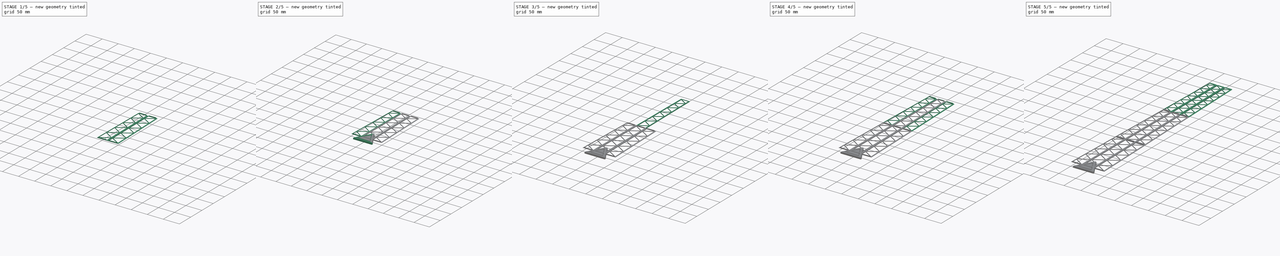
[diagram: build sequence overview — one tinted view per stage of 5, left to right]
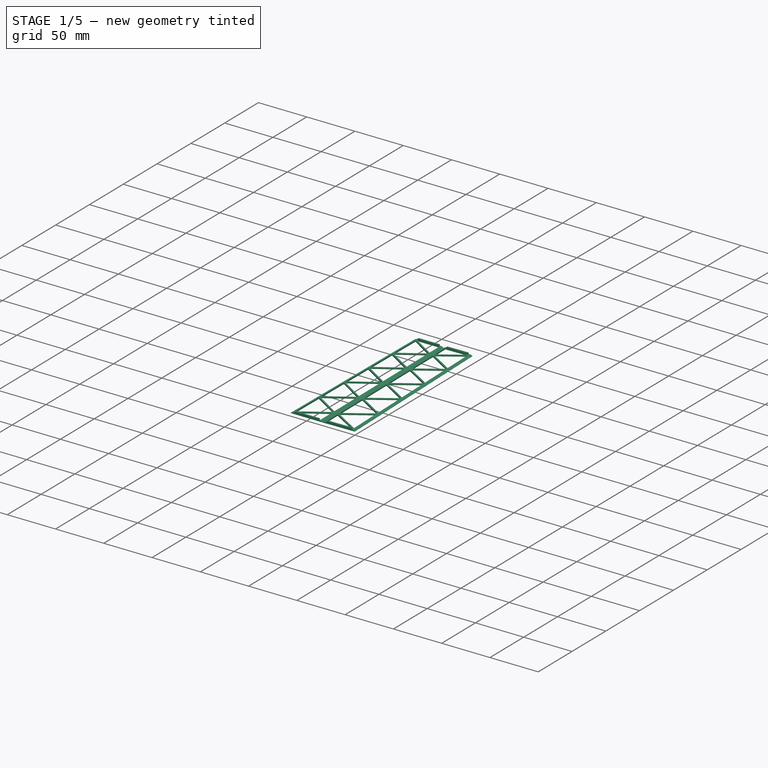
[diagram: stage 1 of 5 — iso view after this stage's code; geometry added in this stage tinted green]
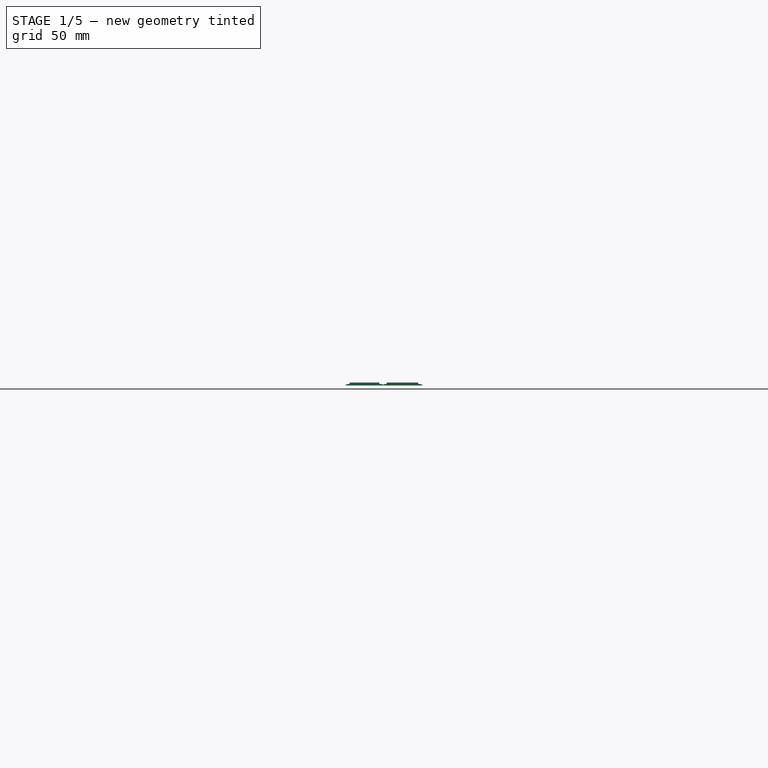
[diagram: stage 1 of 5 — front view after this stage's code; geometry added in this stage tinted green]
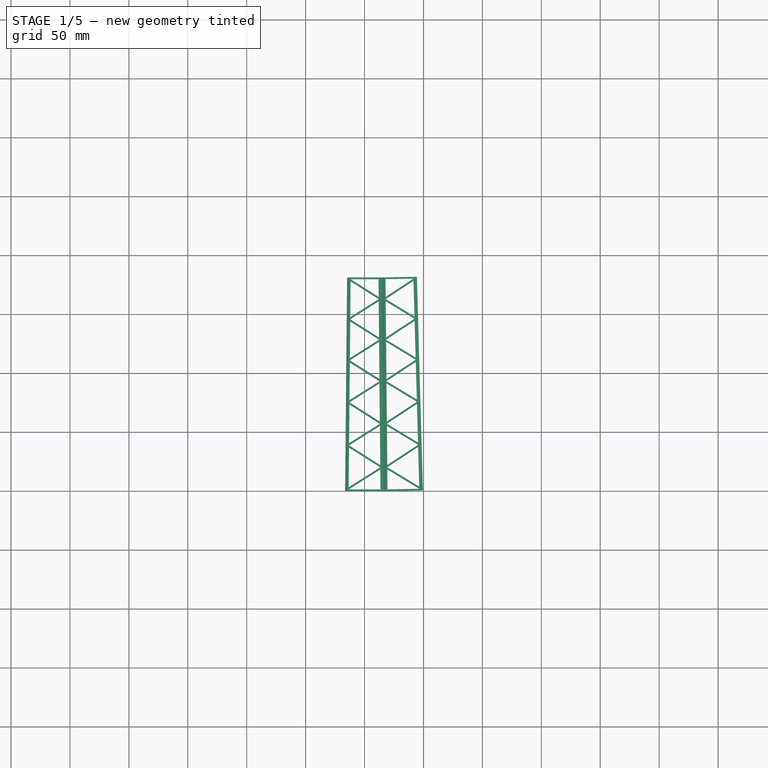
[diagram: stage 1 of 5 — top view after this stage's code; geometry added in this stage tinted green]
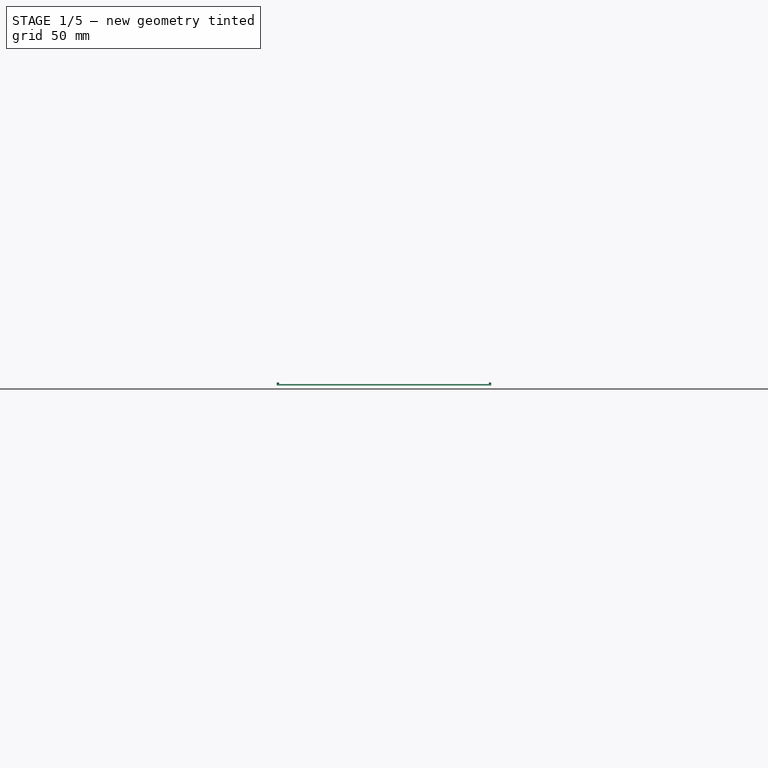
[diagram: stage 1 of 5 — right view after this stage's code; geometry added in this stage tinted green]
FCSTD DOCUMENT  (FreeCAD 1.1R20251125 (Git shallow))
Label: OMJK_30m_lystaarn
License: All rights reserved
LicenseURL: http://en.wikipedia.org/wiki/All_rights_reserved
objects: Sketcher::SketchObject×14, PartDesign::Pad×10, PartDesign::Mirrored×6, PartDesign::Body×5, App::Point×5, PartDesign::SubShapeBinder×3, PartDesign::Chamfer×3, PartDesign::Fillet×3, PartDesign::Pocket×2, Image::ImagePlane×1, App::VarSet×1, PartDesign::ShapeBinder×1
note: 103 computed .brp shape members not serialized (recipe doc carries the construction recipe); baked Part::Feature solids carry a one-line shape summary decoded from their .brp

FEATURE [App::Point] Origin005  label="Origin"
  Role = Origin
FEATURE [App::Point] Origin006  label="Origin"
  Role = Origin
FEATURE [App::Point] Origin007  label="Origin"
  Role = Origin
FEATURE [App::Point] Origin008  label="Origin"
  Role = Origin
FEATURE [App::Point] Origin009  label="Origin"
  Role = Origin
FEATURE [PartDesign::Pad] Pad010
  Direction = (0,0,1)
  Length = 1.2
  Length2 = 10
  Profile = -> Sketch017
  ReferenceAxis = -> Sketch017 [N_Axis]
  Refine = true
  SideType = 0
  Suppressed = false
  Type = 0
  Type2 = 0
FEATURE [PartDesign::Chamfer] Chamfer002
  Angle = 62
  Base = -> Pad010 [Edge10,Edge4]
  BaseFeature = -> Pad010
  ChamferType = 2
  FlipDirection = false
  Refine = true
  Size = 1
  Size2 = 1
  SupportTransform = false
  Suppressed = false
  UseAllEdges = false
FEATURE [PartDesign::ShapeBinder] CopyChamfer002
  TraceSupport = false
FEATURE [PartDesign::Body] Body004  label="TowerBaseSection"
  AllowCompound = true
  Group = -> [Sketch020,Pad008,Sketch021,Pad009,Sketch022,Pocket,Fillet,Fillet001,Sketch023,Pocket001,Fillet002,CopyChamfer002]
  Origin = -> Origin004
  Tip = -> Fillet002
FEATURE [Sketcher::SketchObject] Sketch027
  ArcFitTolerance = 1e-06
  AttachmentSupport = -> [Chamfer002]
  ExternalGeometry = -> [Chamfer002]
  ExternalTypes = [0]
  FullyConstrained = true
  MakeInternals = false
  MapMode = 5
  Placement = pos=(0,0,0) rot=(1,0,0;1.5708rad)
  sketch-geometry (5):
    g0: LineSegment StartX=-12.6192 StartY=2.5 StartZ=0 EndX=-12.6192 EndY=0 EndZ=0
    g1: LineSegment StartX=-12.6192 StartY=0 StartZ=0 EndX=12.6192 EndY=0 EndZ=0
    g2: LineSegment StartX=12.6192 StartY=0 StartZ=0 EndX=12.6192 EndY=2.5 EndZ=0
    g3: LineSegment StartX=12.6192 StartY=2.5 StartZ=0 EndX=-12.6192 EndY=2.5 EndZ=0
    g4: GeomPoint [constr] X=0 Y=1.25 Z=0
  constraints (13):
    c: Coincident(g0,g1)
    c: Coincident(g1,g2)
    c: Coincident(g2,g3)
    c: Coincident(g3,g0)
    c: Vertical(g0)
    c: Vertical(g2)
    c: Horizontal(g1)
    c: Horizontal(g3)
    c: Symmetric(g2,g0,g4)
    c: PointOnObject(g4,g-2)
    c: DistanceX(g2,g-3) = 2
    c: Horizontal(g1,g-1)
    c: Distance(g2,g2) = 2.5
FEATURE [PartDesign::Pad] Pad011
  BaseFeature = -> Chamfer002
  Direction = (0,-1,0)
  Length = 1.5
  Length2 = 10
  Profile = -> Sketch027
  ReferenceAxis = -> Sketch027 [N_Axis]
  Refine = true
  Reversed = true
  SideType = 0
  Suppressed = false
  Type = 0
  Type2 = 0
FEATURE [Sketcher::SketchObject] Sketch028
  ArcFitTolerance = 1e-06
  AttachmentSupport = -> [Pad011]
  ExternalGeometry = -> [Pad011]
  ExternalTypes = [0]
  FullyConstrained = true
  MakeInternals = false
  MapMode = 5
  Placement = pos=(0,181.45,0) rot=(0,0.707107,0.707107;3.14159rad)
  sketch-geometry (5):
    g0: LineSegment StartX=-10.9223 StartY=0 StartZ=0 EndX=10.9223 EndY=0 EndZ=0
    g1: LineSegment StartX=10.9223 StartY=0 StartZ=0 EndX=10.9223 EndY=2.5 EndZ=0
    g2: LineSegment StartX=10.9223 StartY=2.5 StartZ=0 EndX=-10.9223 EndY=2.5 EndZ=0
    g3: LineSegment StartX=-10.9223 StartY=2.5 StartZ=0 EndX=-10.9223 EndY=0 EndZ=0
    g4: GeomPoint [constr] X=0 Y=1.25 Z=0
  constraints (13):
    c: Coincident(g0,g1)
    c: Coincident(g1,g2)
    c: Coincident(g2,g3)
    c: Coincident(g3,g0)
    c: Horizontal(g0)
    c: Horizontal(g2)
    c: Vertical(g1)
    c: Vertical(g3)
    c: Symmetric(g2,g0,g4)
    c: PointOnObject(g4,g-2)
    c: Distance(g1,g1) = 2.5
    c: DistanceX(g1,g-3) = 2
    c: Horizontal(g0,g-1)
FEATURE [PartDesign::Pad] Pad012
  BaseFeature = -> Pad011
  Direction = (0,1,0)
  Length = 1.5
  Length2 = 10
  Profile = -> Sketch028
  ReferenceAxis = -> Sketch028 [N_Axis]
  Refine = true
  Reversed = true
  SideType = 0
  Suppressed = false
  Type = 0
  Type2 = 0
FEATURE [PartDesign::Mirrored] Mirrored004
  BaseFeature = -> Pad012
  MirrorPlane = -> Pad012 [Face4]
  Originals = -> [Pad010,Pad012,Pad011,Chamfer002]
  Refine = true
  Suppressed = false
  TransformMode = 0
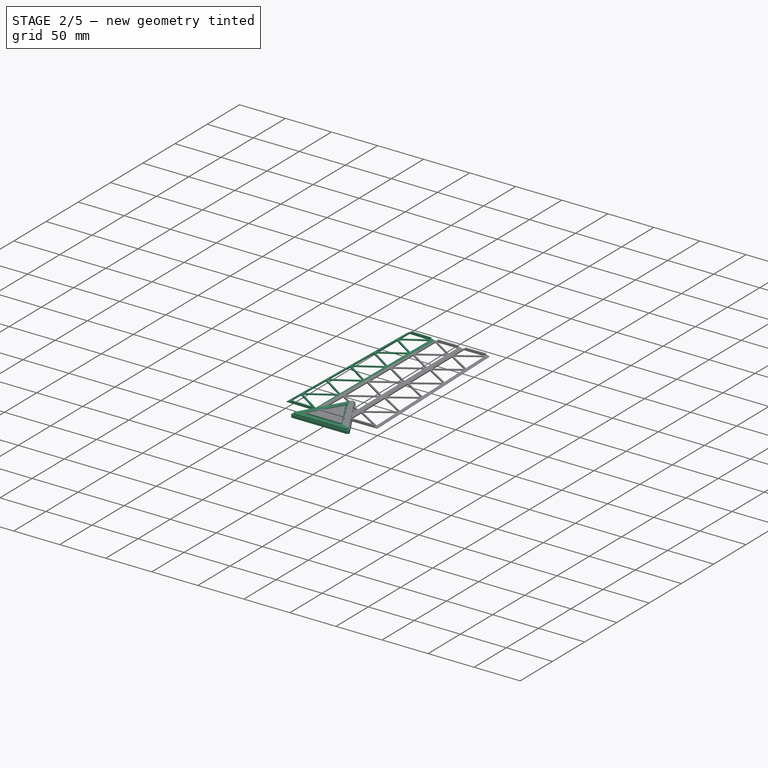
[diagram: stage 2 of 5 — iso view after this stage's code; geometry added in this stage tinted green]
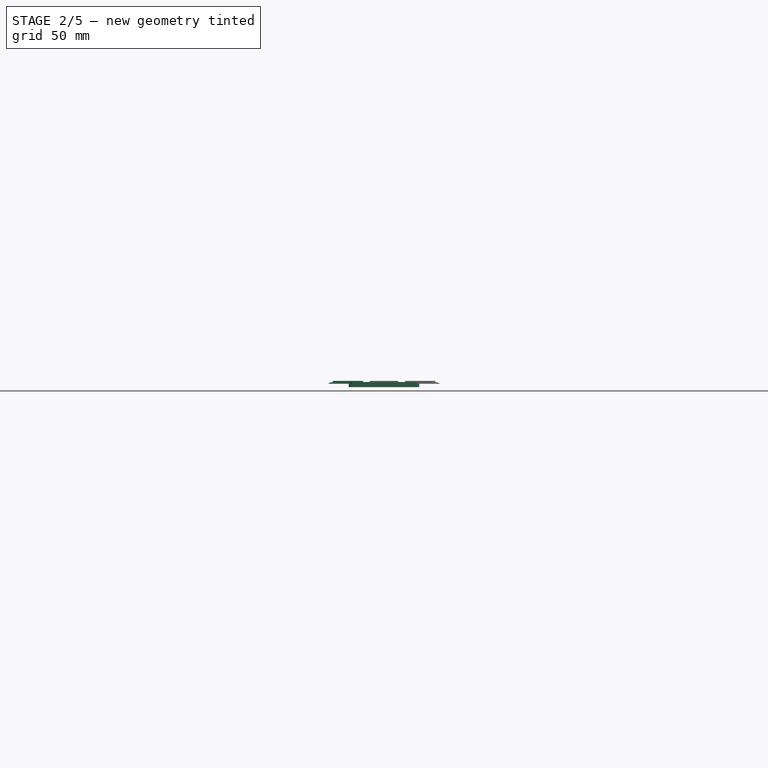
[diagram: stage 2 of 5 — front view after this stage's code; geometry added in this stage tinted green]
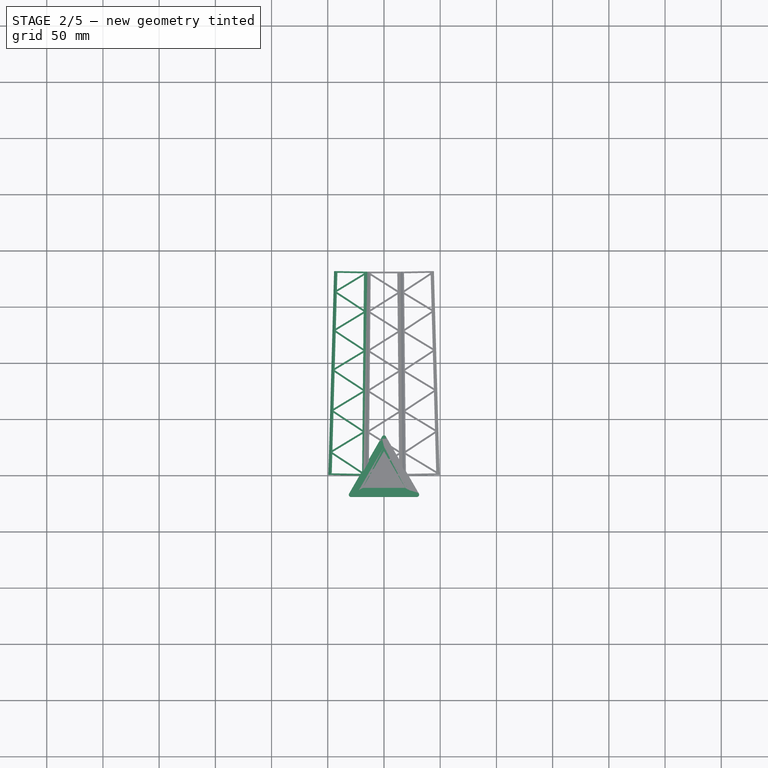
[diagram: stage 2 of 5 — top view after this stage's code; geometry added in this stage tinted green]
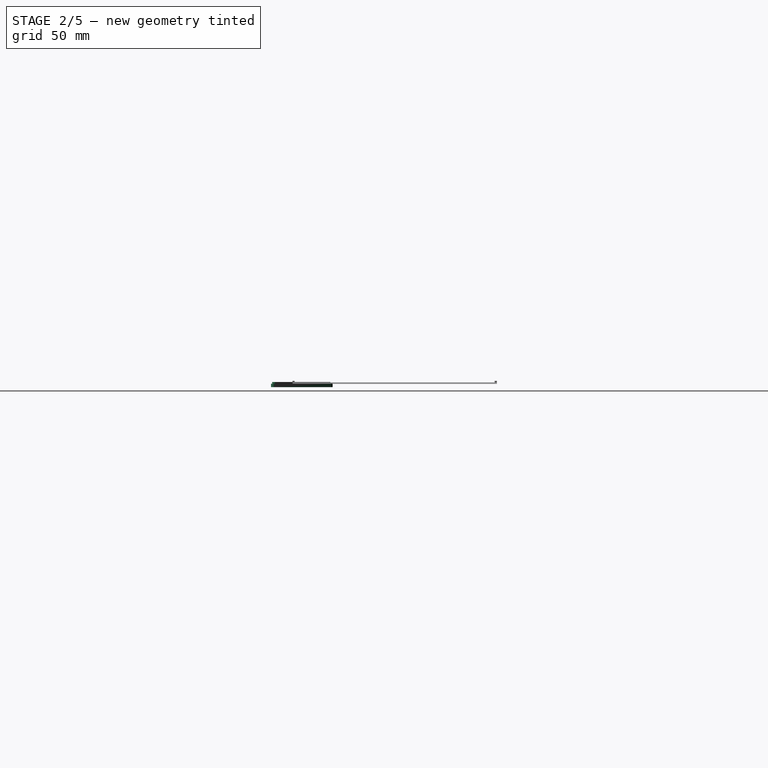
[diagram: stage 2 of 5 — right view after this stage's code; geometry added in this stage tinted green]
FEATURE [PartDesign::Body] Body002  label="TowerMiddleSection"
  AllowCompound = true
  Group = -> [Binder001,Sketch014,Pad003,Chamfer001,Sketch015,Pad004,Sketch016,Pad005,Mirrored002,Mirrored003]
  Origin = -> Origin002
  Tip = -> Mirrored003
FEATURE [PartDesign::SubShapeBinder] Binder002
  BindCopyOnChange = 0
  BindMode = 0
  ClaimChildren = false
  Context = -> Body003 [Binder002.]
  Fuse = false
  MakeFace = true
  OffsetFill = false
  OffsetIntersection = false
  OffsetJoinType = 0
  OffsetOpenResult = false
  PartialLoad = false
  Refine = true
  Relative = true
  Support = -> [Body[Sketch001.]]
  _Version = 2
FEATURE [Sketcher::SketchObject] Sketch017
  ArcFitTolerance = 1e-06
  AttachmentSupport = -> [XY_Plane003]
  ExternalGeometry = -> [Binder002]
  ExternalTypes = [0,0,0,0,0,0,0,0,0,0,0,0,0]
  FullyConstrained = true
  MakeInternals = false
  MapMode = 5
  sketch-geometry (37):
    g0: LineSegment StartX=-16.5 StartY=0 StartZ=0 EndX=-14.8031 EndY=181.45 EndZ=0
    g1: LineSegment StartX=-14.8031 StartY=181.45 StartZ=0 EndX=14.8031 EndY=181.45 EndZ=0
    g2: LineSegment StartX=14.8031 StartY=181.45 StartZ=0 EndX=16.5 EndY=0 EndZ=0
    g3: LineSegment StartX=16.5 StartY=0 StartZ=0 EndX=-16.5 EndY=0 EndZ=0
    g4: LineSegment StartX=-11.8172 StartY=179.95 StartZ=0 EndX=11.8172 EndY=179.95 EndZ=0
    g5: LineSegment StartX=11.8172 StartY=179.95 StartZ=0 EndX=11.9575 EndY=164.943 EndZ=0
    g6: LineSegment StartX=11.9575 StartY=164.943 StartZ=0 EndX=-11.8172 EndY=179.95 EndZ=0
    g7: LineSegment StartX=-11.8348 StartY=178.067 StartZ=0 EndX=11.9753 EndY=163.038 EndZ=0
    g8: LineSegment StartX=11.9753 StartY=163.038 StartZ=0 EndX=-12.1175 EndY=147.83 EndZ=0
    g9: LineSegment StartX=-12.1175 StartY=147.83 StartZ=0 EndX=-11.8348 EndY=178.067 EndZ=0
    g10: LineSegment StartX=11.9929 StartY=161.155 StartZ=0 EndX=-12.1354 EndY=145.925 EndZ=0
    g11: LineSegment StartX=-12.1354 StartY=145.925 StartZ=0 EndX=12.2795 EndY=130.514 EndZ=0
    g12: LineSegment StartX=12.2795 StartY=130.514 StartZ=0 EndX=11.9929 EndY=161.155 EndZ=0
    g13: LineSegment StartX=-12.153 StartY=144.043 StartZ=0 EndX=12.2973 EndY=128.609 EndZ=0
    g14: LineSegment StartX=12.2973 StartY=128.609 StartZ=0 EndX=-12.4433 EndY=112.992 EndZ=0
    g15: LineSegment StartX=-12.4433 StartY=112.992 StartZ=0 EndX=-12.153 EndY=144.043 EndZ=0
    g16: LineSegment StartX=-12.4611 StartY=111.087 StartZ=0 EndX=12.3149 EndY=126.727 EndZ=0
    g17: LineSegment StartX=12.3149 StartY=126.727 StartZ=0 EndX=12.6091 EndY=95.2626 EndZ=0
    g18: LineSegment StartX=12.6091 StartY=95.2626 StartZ=0 EndX=-12.4611 EndY=111.087 EndZ=0
    g19: LineSegment StartX=-12.4788 StartY=109.205 StartZ=0 EndX=12.6269 EndY=93.3577 EndZ=0
    g20: LineSegment StartX=12.6269 StartY=93.3577 StartZ=0 EndX=-12.7769 EndY=77.3223 EndZ=0
    g21: LineSegment StartX=-12.7769 StartY=77.3223 StartZ=0 EndX=-12.4788 EndY=109.205 EndZ=0
    g22: LineSegment StartX=-12.7947 StartY=75.4174 StartZ=0 EndX=12.6446 EndY=91.4751 EndZ=0
    g23: LineSegment StartX=12.6446 StartY=91.4751 StartZ=0 EndX=12.9467 EndY=59.1689 EndZ=0
    g24: LineSegment StartX=12.9467 StartY=59.1689 StartZ=0 EndX=-12.7947 EndY=75.4174 EndZ=0
    g25: LineSegment StartX=-12.8123 StartY=73.5348 StartZ=0 EndX=12.9645 EndY=57.264 EndZ=0
    g26: LineSegment StartX=12.9645 StartY=57.264 StartZ=0 EndX=-13.1185 EndY=40.7999 EndZ=0
    g27: LineSegment StartX=-13.1185 StartY=40.7999 StartZ=0 EndX=-12.8123 EndY=73.5348 EndZ=0
    g28: LineSegment StartX=-13.1363 StartY=38.895 StartZ=0 EndX=12.9821 EndY=55.3814 EndZ=0
    g29: LineSegment StartX=12.9821 StartY=55.3814 StartZ=0 EndX=13.2923 EndY=22.2128 EndZ=0
    g30: LineSegment StartX=13.2923 StartY=22.2128 StartZ=0 EndX=-13.1363 EndY=38.895 EndZ=0
    g31: LineSegment StartX=-13.4682 StartY=3.4049 StartZ=0 EndX=-13.1539 EndY=37.0124 EndZ=0
    g32: LineSegment StartX=-13.1539 StartY=37.0124 StartZ=0 EndX=13.3101 EndY=20.3079 EndZ=0
    g33: LineSegment StartX=13.3101 StartY=20.3079 StartZ=0 EndX=-13.4682 EndY=3.4049 EndZ=0
    g34: LineSegment StartX=-13.486 StartY=1.5 StartZ=0 EndX=13.3277 EndY=18.4253 EndZ=0
    g35: LineSegment StartX=13.3277 StartY=18.4253 StartZ=0 EndX=13.486 EndY=1.5 EndZ=0
    g36: LineSegment StartX=13.486 StartY=1.5 StartZ=0 EndX=-13.486 EndY=1.5 EndZ=0
  constraints (109):
    c: Coincident(g0,g1)
    c: Coincident(g1,g2)
    c: Coincident(g2,g3)
    c: Coincident(g3,g0)
    c: Symmetric(g2,g0,g-1)
    c: Horizontal(g3)
    c: Symmetric(g1,g0,g-2)
    c: Horizontal(g1,g-5)
    c: Parallel(g0,g-4)
    c: Distance(g0,g-5) = 1.5
    c: Coincident(g4,g5)
    c: Coincident(g5,g6)
    c: Coincident(g6,g4)
    c: Coincident(g7,g8)
    c: Coincident(g8,g9)
    c: Coincident(g9,g7)
    c: Parallel(g9,g-4)
    c: Parallel(g5,g-3)
    c: Horizontal(g4)
    c: Horizontal(g4,g-6)
    c: Parallel(g-6,g6)
    c: Parallel(g7,g-6)
    c: Horizontal(g7,g-7)
    c: PointOnObject(g7,g5)
    c: PointOnObject(g4,g9)
    c: Distance(g7,g-7) = 1.5
    c: Distance(g4,g-6) = 1.5
    c: Parallel(g8,g-7)
    c: Coincident(g10,g11)
    c: Coincident(g11,g12)
    c: Coincident(g12,g10)
    c: Coincident(g13,g14)
    c: Coincident(g14,g15)
    c: Coincident(g15,g13)
    c: Parallel(g13,g-8)
    c: Parallel(g-8,g11)
    c: Parallel(g15,g-4)
    c: PointOnObject(g13,g9)
    c: Horizontal(g10,g-8)
    c: Horizontal(g13,g-9)
    c: Parallel(g-3,g12)
    c: Parallel(g10,g8)
    c: PointOnObject(g10,g5)
    c: PointOnObject(g10,g9)
    c: PointOnObject(g13,g12)
    c: Parallel(g14,g-9)
    c: Coincident(g16,g17)
    c: Coincident(g17,g18)
    c: Coincident(g18,g16)
    c: Coincident(g19,g20)
    c: Coincident(g20,g21)
    c: Coincident(g21,g19)
    c: Coincident(g22,g23)
    c: Coincident(g23,g24)
    c: Coincident(g24,g22)
    c: Horizontal(g19,g-11)
    c: Horizontal(g16,g-10)
    c: Horizontal(g22,g-12)
    c: Parallel(g21,g0)
    c: Parallel(g17,g-3)
    c: Parallel(g-3,g23)
    c: Parallel(g16,g-9)
    c: Parallel(g19,g-10)
    c: Parallel(g-10,g18)
    c: PointOnObject(g16,g12)
    c: PointOnObject(g16,g15)
    c: PointOnObject(g19,g15)
    c: PointOnObject(g19,g17)
    c: Parallel(g20,g-11)
    c: Parallel(g-11,g22)
    c: PointOnObject(g22,g17)
    c: Parallel(g24,g-12)
    c: PointOnObject(g22,g21)
    c: Coincident(g25,g26)
    c: Coincident(g26,g27)
    c: Coincident(g27,g25)
    c: Coincident(g28,g29)
    c: Coincident(g29,g30)
    c: Coincident(g30,g28)
    c: Coincident(g31,g32)
    c: Coincident(g32,g33)
    c: Coincident(g33,g31)
    c: Parallel(g28,g26)
    c: Parallel(g26,g-13)
    c: Parallel(g25,g-12)
    c: Parallel(g27,g-4)
    c: PointOnObject(g25,g21)
    c: Horizontal(g25,g-13)
    c: PointOnObject(g25,g23)
    c: PointOnObject(g28,g23)
    c: Parallel(g29,g-3)
    c: Horizontal(g28,g-14)
    c: PointOnObject(g28,g27)
    c: Parallel(g30,g-14)
    c: Parallel(g-14,g32)
    c: Horizontal(g32,g-14)
    c: Parallel(g31,g-4)
    c: Parallel(g33,g28)
    c: PointOnObject(g31,g27)
    c: PointOnObject(g32,g29)
    c: Coincident(g34,g35)
    c: Coincident(g35,g36)
    c: Coincident(g36,g34)
    c: Horizontal(g36)
    c: Parallel(g2,g35)
    c: PointOnObject(g34,g29)
    c: Parallel(g34,g33)
    c: Horizontal(g34,g-15)
    c: PointOnObject(g34,g31)
FEATURE [Sketcher::SketchObject] Sketch022
  ArcFitTolerance = 1e-06
  AttachmentSupport = -> [XY_Plane004]
  ExternalTypes = [0]
  FullyConstrained = true
  MakeInternals = false
  MapMode = 5
  expr: Constraints[10] = 43.75 + 1
  sketch-geometry (9):
    g0: LineSegment StartX=0 StartY=25.8364 StartZ=0 EndX=-22.375 EndY=-12.9182 EndZ=0
    g1: LineSegment StartX=-22.375 StartY=-12.9182 StartZ=0 EndX=22.375 EndY=-12.9182 EndZ=0
    g2: LineSegment StartX=22.375 StartY=-12.9182 StartZ=0 EndX=3.6e-15 EndY=25.8364 EndZ=0
    g3: Circle [constr] CenterX=0 CenterY=0 CenterZ=0 NormalX=0 NormalY=0 NormalZ=1 AngleXU=0 Radius=25.8364
    g4: LineSegment StartX=0 StartY=21.8364 StartZ=0 EndX=-18.9109 EndY=-10.9182 EndZ=0
    g5: LineSegment StartX=-18.9109 StartY=-10.9182 StartZ=0 EndX=18.9109 EndY=-10.9182 EndZ=0
    g6: LineSegment StartX=18.9109 StartY=-10.9182 StartZ=0 EndX=0 EndY=21.8364 EndZ=0
    g7: Circle [constr] CenterX=0 CenterY=0 CenterZ=0 NormalX=0 NormalY=0 NormalZ=1 AngleXU=0 Radius=21.8364
    g8: LineSegment [constr] StartX=0 StartY=-10.9182 StartZ=0 EndX=0 EndY=-12.9182 EndZ=0
  constraints (26):
    c: Coincident(g0,g1)
    c: Coincident(g1,g2)
    c: Coincident(g2,g0)
    c: Equal(g0,g1)
    c: Equal(g0,g2)
    c: PointOnObject(g0,g3)
    c: PointOnObject(g1,g3)
    c: PointOnObject(g2,g3)
    c: Coincident(g3,g-1)
    c: PointOnObject(g2,g-2)
    c: Distance(g0,g0) = 44.75
    c: Coincident(g4,g5)
    c: Coincident(g5,g6)
    c: Coincident(g6,g4)
    c: Equal(g4,g5)
    c: Equal(g4,g6)
    c: PointOnObject(g4,g7)
    c: PointOnObject(g5,g7)
    c: PointOnObject(g6,g7)
    c: Coincident(g7,g3)
    c: PointOnObject(g6,g-2)
    c: PointOnObject(g8,g5)
    c: PointOnObject(g8,g1)
    c: Vertical(g8)
    c: DistanceY(g8,g8) = 2
    c: Vertical(g8,g3)
FEATURE [Sketcher::SketchObject] Sketch020
  ArcFitTolerance = 1e-06
  AttachmentSupport = -> [XY_Plane004]
  ExternalGeometry = -> [Sketch022]
  ExternalTypes = [0]
  FullyConstrained = true
  MakeInternals = false
  MapMode = 5
  sketch-geometry (5):
    g0: LineSegment StartX=0 StartY=37.8364 StartZ=0 EndX=-32.7673 EndY=-18.9182 EndZ=0
    g1: LineSegment StartX=-32.7673 StartY=-18.9182 StartZ=0 EndX=32.7673 EndY=-18.9182 EndZ=0
    g2: LineSegment StartX=32.7673 StartY=-18.9182 StartZ=0 EndX=0 EndY=37.8364 EndZ=0
    g3: Circle [constr] CenterX=0 CenterY=0 CenterZ=0 NormalX=0 NormalY=0 NormalZ=1 AngleXU=0 Radius=37.8364
    g4: LineSegment [constr] StartX=22.375 StartY=-12.9182 StartZ=0 EndX=22.375 EndY=-18.9182 EndZ=0
  constraints (14):
    c: Coincident(g0,g1)
    c: Coincident(g1,g2)
    c: Coincident(g2,g0)
    c: Equal(g0,g1)
    c: Equal(g0,g2)
    c: PointOnObject(g0,g3)
    c: PointOnObject(g1,g3)
    c: PointOnObject(g2,g3)
    c: Coincident(g3,g-1)
    c: PointOnObject(g2,g-2)
    c: Coincident(g4,g-3)
    c: PointOnObject(g4,g1)
    c: Vertical(g4)
    c: DistanceY(g4,g4) = 6
FEATURE [PartDesign::Pad] Pad008
  Direction = (0,0,1)
  Length = 3
  Length2 = 10
  Profile = -> Sketch020
  ReferenceAxis = -> Sketch020 [N_Axis]
  Refine = true
  Reversed = true
  SideType = 0
  Suppressed = false
  Type = 0
  Type2 = 0
FEATURE [Sketcher::SketchObject] Sketch021
  ArcFitTolerance = 1e-06
  AttachmentSupport = -> [XY_Plane004]
  ExternalGeometry = -> [Sketch022]
  ExternalTypes = [0]
  FullyConstrained = true
  MakeInternals = false
  MapMode = 5
  sketch-geometry (5):
    g0: LineSegment StartX=0 StartY=35.8364 StartZ=0 EndX=-31.0353 EndY=-17.9182 EndZ=0
    g1: LineSegment StartX=-31.0353 StartY=-17.9182 StartZ=0 EndX=31.0353 EndY=-17.9182 EndZ=0
    g2: LineSegment StartX=31.0353 StartY=-17.9182 StartZ=0 EndX=0 EndY=35.8364 EndZ=0
    g3: Circle [constr] CenterX=0 CenterY=0 CenterZ=0 NormalX=0 NormalY=0 NormalZ=1 AngleXU=0 Radius=35.8364
    g4: LineSegment [constr] StartX=22.375 StartY=-12.9182 StartZ=0 EndX=22.375 EndY=-17.9182 EndZ=0
  constraints (14):
    c: Coincident(g0,g1)
    c: Coincident(g1,g2)
    c: Coincident(g2,g0)
    c: Equal(g0,g1)
    c: Equal(g0,g2)
    c: PointOnObject(g0,g3)
    c: PointOnObject(g1,g3)
    c: PointOnObject(g2,g3)
    c: Coincident(g3,g-1)
    c: PointOnObject(g2,g-2)
    c: Coincident(g4,g-3)
    c: PointOnObject(g4,g1)
    c: Vertical(g4)
    c: Distance(g4,g4) = 5
FEATURE [PartDesign::Pad] Pad009
  BaseFeature = -> Pad008
  Direction = (0,0,1)
  Length = 1.5
  Length2 = 10
  Profile = -> Sketch021
  ReferenceAxis = -> Sketch021 [N_Axis]
  Refine = true
  SideType = 0
  Suppressed = false
  Type = 0
  Type2 = 0
FEATURE [PartDesign::Pocket] Pocket
  BaseFeature = -> Pad009
  Direction = (0,0,-1)
  Length = 5
  Length2 = 5
  Profile = -> Sketch022
  ReferenceAxis = -> Sketch022 [N_Axis]
  Refine = true
  Reversed = true
  SideType = 0
  Suppressed = false
  Type = 0
  Type2 = 0
FEATURE [PartDesign::Fillet] Fillet
  Base = -> Pocket [Edge2,Edge5,Edge1,Edge16,Edge14,Edge13]
  BaseFeature = -> Pocket
  Radius = 2
  Refine = true
  SupportTransform = false
  Suppressed = false
  UseAllEdges = false
FEATURE [PartDesign::Mirrored] Mirrored005
  BaseFeature = -> Mirrored004
  MirrorPlane = -> Mirrored004 [Face3]
  Originals = -> [Pad010,Chamfer002,Pad011,Pad012]
  Refine = true
  Suppressed = false
  TransformMode = 0
FEATURE [PartDesign::Body] Body003  label="TowerBottomSection"
  AllowCompound = true
  Group = -> [Binder002,Sketch017,Pad010,Chamfer002,Sketch027,Pad011,Sketch028,Pad012,Mirrored004,Mirrored005]
  Origin = -> Origin003
  Tip = -> Mirrored005
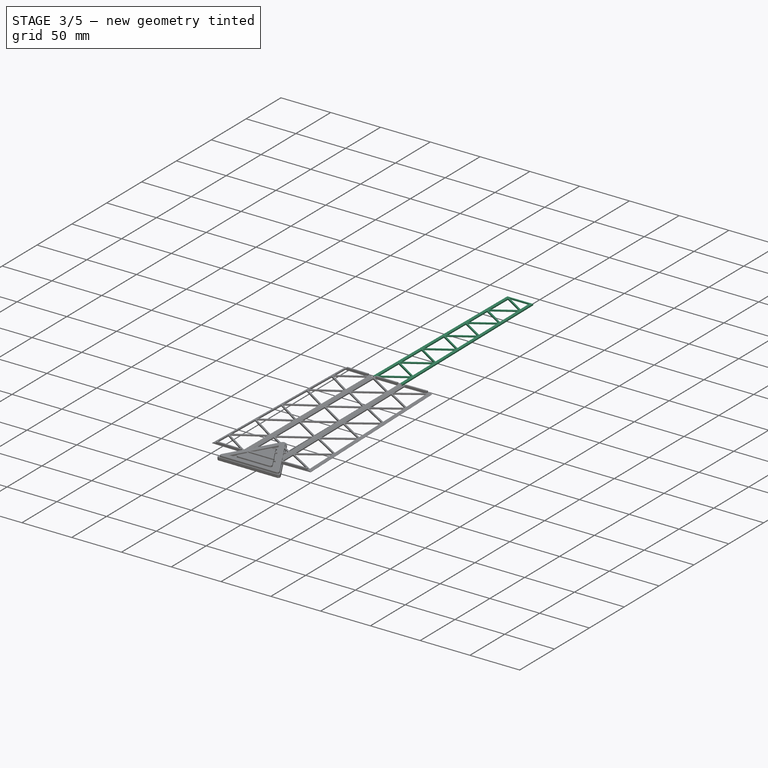
[diagram: stage 3 of 5 — iso view after this stage's code; geometry added in this stage tinted green]
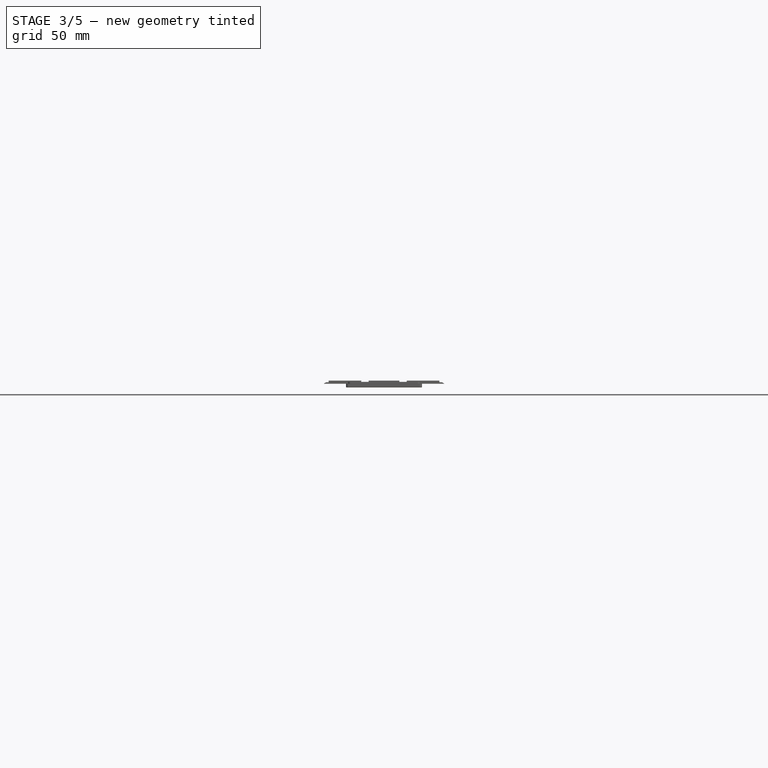
[diagram: stage 3 of 5 — front view after this stage's code; geometry added in this stage tinted green]
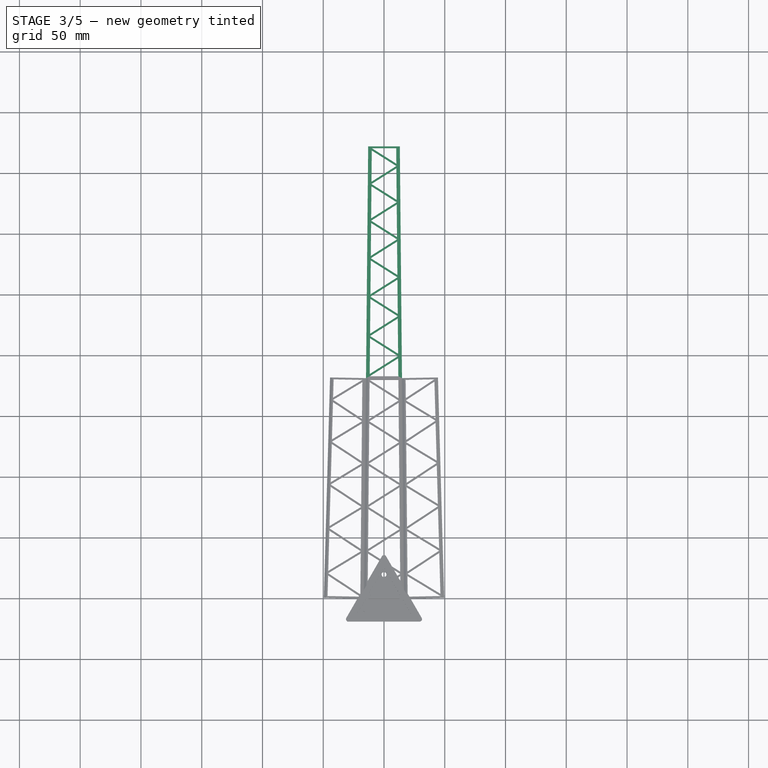
[diagram: stage 3 of 5 — top view after this stage's code; geometry added in this stage tinted green]
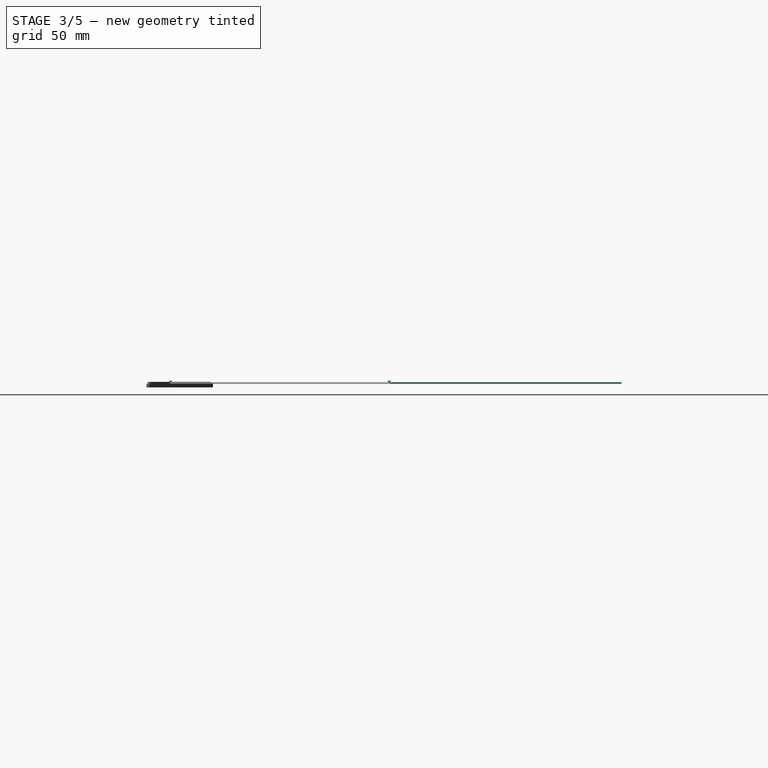
[diagram: stage 3 of 5 — right view after this stage's code; geometry added in this stage tinted green]
FEATURE [PartDesign::Body] Body001  label="TowerTopSection"
  AllowCompound = true
  Group = -> [Binder,Sketch002,Pad,Chamfer,Sketch013,Pad002,Mirrored,Mirrored001]
  Origin = -> Origin001
  Tip = -> Mirrored001
FEATURE [PartDesign::SubShapeBinder] Binder001
  BindCopyOnChange = 0
  BindMode = 0
  ClaimChildren = false
  Context = -> Body002 [Binder001.]
  Fuse = false
  MakeFace = true
  OffsetFill = false
  OffsetIntersection = false
  OffsetJoinType = 0
  OffsetOpenResult = false
  PartialLoad = false
  Refine = true
  Relative = true
  Support = -> [Body[Sketch001.]]
  _Version = 2
FEATURE [Sketcher::SketchObject] Sketch014
  ArcFitTolerance = 1e-06
  AttachmentSupport = -> [XY_Plane002]
  ExternalGeometry = -> [Binder001]
  ExternalTypes = [0]
  FullyConstrained = true
  MakeInternals = false
  MapMode = 5
  expr: Constraints[11] = VarSet.IronLegWidth
  sketch-geometry (45):
    g0: LineSegment StartX=-14.8033 StartY=181.45 StartZ=0 EndX=-13.0198 EndY=372.162 EndZ=0
    g1: LineSegment StartX=-13.0198 StartY=372.162 StartZ=0 EndX=13.0198 EndY=372.162 EndZ=0
    g2: LineSegment StartX=13.0198 StartY=372.162 StartZ=0 EndX=14.8033 EndY=181.45 EndZ=0
    g3: LineSegment StartX=-14.8033 StartY=181.45 StartZ=0 EndX=14.8033 EndY=181.45 EndZ=0
    g4: LineSegment [constr] StartX=-13.0512 StartY=368.807 StartZ=0 EndX=-10.0512 EndY=368.779 EndZ=0
    g5: LineSegment StartX=-10.0336 StartY=370.662 StartZ=0 EndX=10.0336 EndY=370.662 EndZ=0
    g6: LineSegment StartX=10.0336 StartY=370.662 StartZ=0 EndX=10.1527 EndY=357.92 EndZ=0
    g7: LineSegment StartX=10.1527 StartY=357.92 StartZ=0 EndX=-10.0336 EndY=370.662 EndZ=0
    g8: LineSegment StartX=-10.0512 StartY=368.779 StartZ=0 EndX=10.1705 EndY=356.015 EndZ=0
    g9: LineSegment StartX=10.1705 StartY=356.015 StartZ=0 EndX=-10.2913 EndY=343.099 EndZ=0
    g10: LineSegment StartX=-10.2913 StartY=343.099 StartZ=0 EndX=-10.0512 EndY=368.779 EndZ=0
    g11: LineSegment StartX=-10.3091 StartY=341.194 StartZ=0 EndX=10.1881 EndY=354.132 EndZ=0
    g12: LineSegment StartX=10.1881 StartY=354.132 StartZ=0 EndX=10.4316 EndY=328.102 EndZ=0
    g13: LineSegment StartX=10.4316 StartY=328.102 StartZ=0 EndX=-10.3091 EndY=341.194 EndZ=0
    g14: LineSegment StartX=-10.3267 StartY=339.311 StartZ=0 EndX=10.4494 EndY=326.197 EndZ=0
    g15: LineSegment StartX=10.4494 StartY=326.197 StartZ=0 EndX=-10.5735 EndY=312.927 EndZ=0
    g16: LineSegment StartX=-10.5735 StartY=312.927 StartZ=0 EndX=-10.3267 EndY=339.311 EndZ=0
    g17: LineSegment [constr] StartX=10.0336 StartY=370.662 StartZ=0 EndX=13.0336 EndY=370.69 EndZ=0
    g18: LineSegment StartX=10.467 StartY=324.314 StartZ=0 EndX=-10.5913 EndY=311.022 EndZ=0
    g19: LineSegment StartX=-10.5913 StartY=311.022 StartZ=0 EndX=10.7171 EndY=297.572 EndZ=0
    g20: LineSegment StartX=10.7171 StartY=297.572 StartZ=0 EndX=10.467 EndY=324.314 EndZ=0
    g21: LineSegment StartX=10.7349 StartY=295.667 StartZ=0 EndX=-10.6089 EndY=309.139 EndZ=0
    g22: LineSegment StartX=-10.6089 StartY=309.139 StartZ=0 EndX=-10.8624 EndY=282.034 EndZ=0
    g23: LineSegment StartX=-10.8624 StartY=282.034 StartZ=0 EndX=10.7349 EndY=295.667 EndZ=0
    g24: LineSegment StartX=10.7525 StartY=293.784 StartZ=0 EndX=-10.8802 EndY=280.129 EndZ=0
    g25: LineSegment StartX=-10.8802 StartY=280.129 StartZ=0 EndX=11.0094 EndY=266.312 EndZ=0
    g26: LineSegment StartX=11.0094 StartY=266.312 StartZ=0 EndX=10.7525 EndY=293.784 EndZ=0
    g27: LineSegment StartX=-10.8978 StartY=278.246 StartZ=0 EndX=11.0272 EndY=264.407 EndZ=0
    g28: LineSegment StartX=11.0272 StartY=264.407 StartZ=0 EndX=-11.1582 EndY=250.403 EndZ=0
    g29: LineSegment StartX=-11.1582 StartY=250.403 StartZ=0 EndX=-10.8978 EndY=278.246 EndZ=0
    g30: LineSegment StartX=11.0448 StartY=262.524 StartZ=0 EndX=-11.176 EndY=248.498 EndZ=0
    g31: LineSegment StartX=-11.176 StartY=248.498 StartZ=0 EndX=11.3087 EndY=234.305 EndZ=0
    g32: LineSegment StartX=11.3087 StartY=234.305 StartZ=0 EndX=11.0448 EndY=262.524 EndZ=0
    g33: LineSegment StartX=-11.1936 StartY=246.615 StartZ=0 EndX=11.3265 EndY=232.4 EndZ=0
    g34: LineSegment StartX=11.3265 StartY=232.4 StartZ=0 EndX=-11.4611 EndY=218.016 EndZ=0
    g35: LineSegment StartX=-11.4611 StartY=218.016 StartZ=0 EndX=-11.1936 EndY=246.615 EndZ=0
    g36: LineSegment StartX=-11.4789 StartY=216.111 StartZ=0 EndX=11.3441 EndY=230.517 EndZ=0
    g37: LineSegment StartX=11.3441 StartY=230.517 StartZ=0 EndX=11.6152 EndY=201.533 EndZ=0
    g38: LineSegment StartX=11.6152 StartY=201.533 StartZ=0 EndX=-11.4789 EndY=216.111 EndZ=0
    g39: LineSegment StartX=-11.4965 StartY=214.228 StartZ=0 EndX=-11.7712 EndY=184.855 EndZ=0
    g40: LineSegment StartX=-11.7712 StartY=184.855 StartZ=0 EndX=11.633 EndY=199.628 EndZ=0
    g41: LineSegment StartX=11.633 StartY=199.628 StartZ=0 EndX=-11.4965 EndY=214.228 EndZ=0
    g42: LineSegment StartX=11.6506 StartY=197.745 StartZ=0 EndX=-11.789 EndY=182.95 EndZ=0
    g43: LineSegment StartX=-11.789 StartY=182.95 StartZ=0 EndX=11.789 EndY=182.95 EndZ=0
    g44: LineSegment StartX=11.789 StartY=182.95 StartZ=0 EndX=11.6506 EndY=197.745 EndZ=0
  constraints (132):
    c: Coincident(g0,g1)
    c: Horizontal(g1)
    c: Coincident(g1,g2)
    c: Coincident(g3,g0)
    c: Coincident(g3,g2)
    c: Symmetric(g2,g0,g-2)
    c: Parallel(g-4,g0)
    c: Parallel(g-5,g2)
    c: Horizontal(g0,g-3)
    c: PointOnObject(g4,g0)
    c: Symmetric(g4,g4,g-4)
    c: DistanceX(g4,g4) = 3
    c: Horizontal(g5)
    c: Coincident(g5,g6)
    c: Coincident(g6,g7)
    c: Coincident(g7,g5)
    c: Coincident(g8,g9)
    c: Coincident(g9,g10)
    c: Coincident(g10,g8)
    c: Coincident(g11,g12)
    c: Coincident(g12,g13)
    c: Coincident(g13,g11)
    c: Coincident(g14,g15)
    c: Coincident(g15,g16)
    c: Coincident(g16,g14)
    c: Horizontal(g5,g-6)
    c: Horizontal(g8,g-7)
    c: Horizontal(g11,g-8)
    c: Horizontal(g14,g-9)
    c: Parallel(g-5,g6)
    c: Parallel(g6,g12)
    c: Parallel(g10,g-4)
    c: Parallel(g-4,g16)
    c: Coincident(g4,g8)
    c: Parallel(g8,g7)
    c: Parallel(g7,g-6)
    c: Coincident(g17,g5)
    c: PointOnObject(g17,g2)
    c: Symmetric(g17,g5,g-5)
    c: PointOnObject(g5,g10)
    c: PointOnObject(g8,g6)
    c: PointOnObject(g11,g6)
    c: PointOnObject(g11,g10)
    c: PointOnObject(g14,g10)
    c: PointOnObject(g14,g12)
    c: Parallel(g11,g-7)
    c: Parallel(g9,g-7)
    c: Parallel(g13,g-8)
    c: Parallel(g14,g-8)
    c: Parallel(g15,g-9)
    c: Coincident(g18,g19)
    c: Coincident(g19,g20)
    c: Coincident(g20,g18)
    c: Coincident(g21,g22)
    c: Coincident(g22,g23)
    c: Coincident(g23,g21)
    c: Coincident(g24,g25)
    c: Coincident(g25,g26)
    c: Coincident(g26,g24)
    c: Coincident(g27,g28)
    c: Coincident(g28,g29)
    c: Coincident(g29,g27)
    c: Parallel(g18,g-9)
    c: Parallel(g19,g-10)
    c: Parallel(g21,g-10)
    c: Parallel(g20,g-5)
    c: Parallel(g26,g-5)
    c: Parallel(g22,g-4)
    c: Parallel(g29,g22)
    c: PointOnObject(g24,g22)
    c: PointOnObject(g27,g22)
    c: Horizontal(g24,g-12)
    c: Horizontal(g27,g-13)
    c: Horizontal(g21,g-11)
    c: Horizontal(g18,g-10)
    c: PointOnObject(g18,g16)
    c: PointOnObject(g21,g16)
    c: PointOnObject(g18,g12)
    c: PointOnObject(g21,g20)
    c: PointOnObject(g24,g20)
    c: PointOnObject(g27,g26)
    c: Parallel(g27,g-12)
    c: Parallel(g25,g-12)
    c: Parallel(g24,g-11)
    c: Parallel(g23,g-11)
    c: Parallel(g-13,g28)
    c: Coincident(g30,g31)
    c: Coincident(g31,g32)
    c: Coincident(g32,g30)
    c: Coincident(g33,g34)
    c: Coincident(g34,g35)
    c: Coincident(g35,g33)
    c: Coincident(g36,g37)
    c: Coincident(g37,g38)
    c: Coincident(g38,g36)
    c: Coincident(g39,g40)
    c: Coincident(g40,g41)
    c: Coincident(g41,g39)
    c: Coincident(g42,g43)
    c: Horizontal(g43)
    c: Coincident(g43,g44)
    c: Coincident(g44,g42)
    c: Parallel(g32,g-5)
    c: Parallel(g35,g-4)
    c: Parallel(g37,g-5)
    c: Parallel(g39,g0)
    c: Parallel(g44,g-5)
    c: Horizontal(g30,g-14)
    c: Horizontal(g33,g-15)
    c: Horizontal(g36,g-16)
    c: Horizontal(g40,g-17)
    c: Horizontal(g42,g-17)
    c: PointOnObject(g33,g32)
    c: PointOnObject(g30,g26)
    c: PointOnObject(g36,g32)
    c: PointOnObject(g40,g37)
    c: PointOnObject(g42,g37)
    c: PointOnObject(g42,g39)
    c: PointOnObject(g36,g39)
    c: PointOnObject(g36,g35)
    c: PointOnObject(g30,g29)
    c: PointOnObject(g33,g29)
    c: Parallel(g30,g-13)
    c: Parallel(g31,g-14)
    c: Parallel(g33,g31)
    c: Parallel(g34,g-15)
    c: Parallel(g36,g-15)
    c: Parallel(g38,g-16)
    c: Parallel(g41,g-16)
    c: Parallel(g40,g-17)
    c: Parallel(g42,g-17)
    c: PointOnObject(g-18,g3)
FEATURE [PartDesign::Pad] Pad003
  Direction = (0,0,1)
  Length = 1.2
  Length2 = 10
  Profile = -> Sketch014
  ReferenceAxis = -> Sketch014 [N_Axis]
  Refine = true
  SideType = 0
  Suppressed = false
  Type = 0
  Type2 = 0
FEATURE [PartDesign::Fillet] Fillet001
  Base = -> Fillet [Edge51,Edge52,Edge49]
  BaseFeature = -> Fillet
  Radius = 2
  Refine = true
  SupportTransform = false
  Suppressed = false
  UseAllEdges = false
FEATURE [Sketcher::SketchObject] Sketch023
  ArcFitTolerance = 1e-06
  AttachmentSupport = -> [Fillet001]
  ExternalGeometry = -> [Fillet001]
  ExternalTypes = [0]
  FullyConstrained = false
  MakeInternals = false
  MapMode = 5
  Placement = pos=(0,0,1.5) rot=(0,0,1;0rad)
  sketch-geometry (1):
    g0: Circle CenterX=0 CenterY=19.8364 CenterZ=0 NormalX=0 NormalY=0 NormalZ=1 AngleXU=0 Radius=2
  constraints (2):
    c: PointOnObject(g0,g-2)
    c: PointOnObject(g0,g-3)
FEATURE [PartDesign::Pocket] Pocket001
  BaseFeature = -> Fillet001
  Direction = (0,0,-1)
  Length = 5
  Length2 = 5
  Profile = -> Sketch023
  ReferenceAxis = -> Sketch023 [N_Axis]
  Refine = true
  SideType = 0
  Suppressed = false
  Type = 1
  Type2 = 0
FEATURE [PartDesign::Fillet] Fillet002
  Base = -> Pocket001 [Edge40]
  BaseFeature = -> Pocket001
  Radius = 0.5
  Refine = true
  SupportTransform = false
  Suppressed = false
  UseAllEdges = false
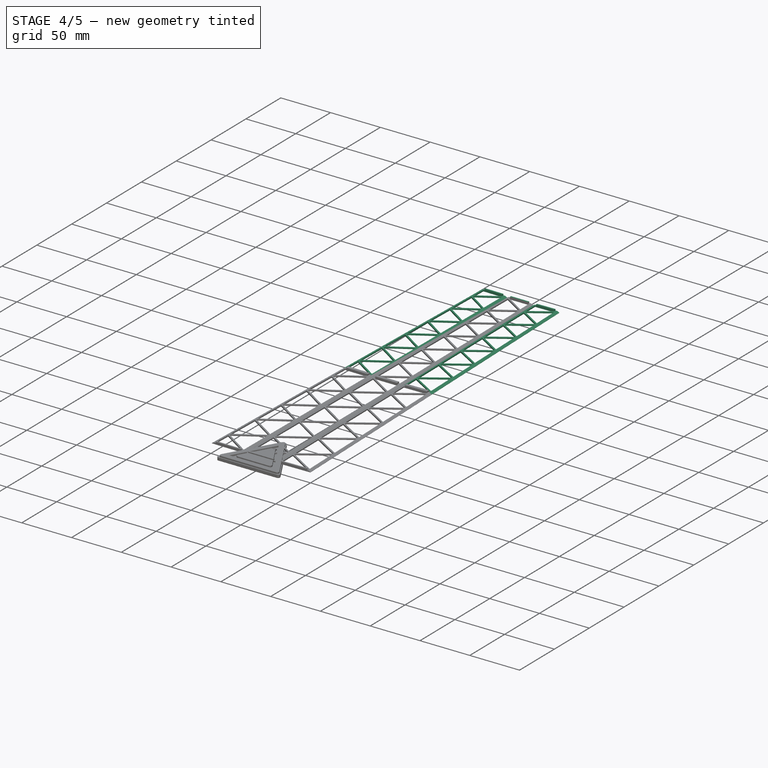
[diagram: stage 4 of 5 — iso view after this stage's code; geometry added in this stage tinted green]
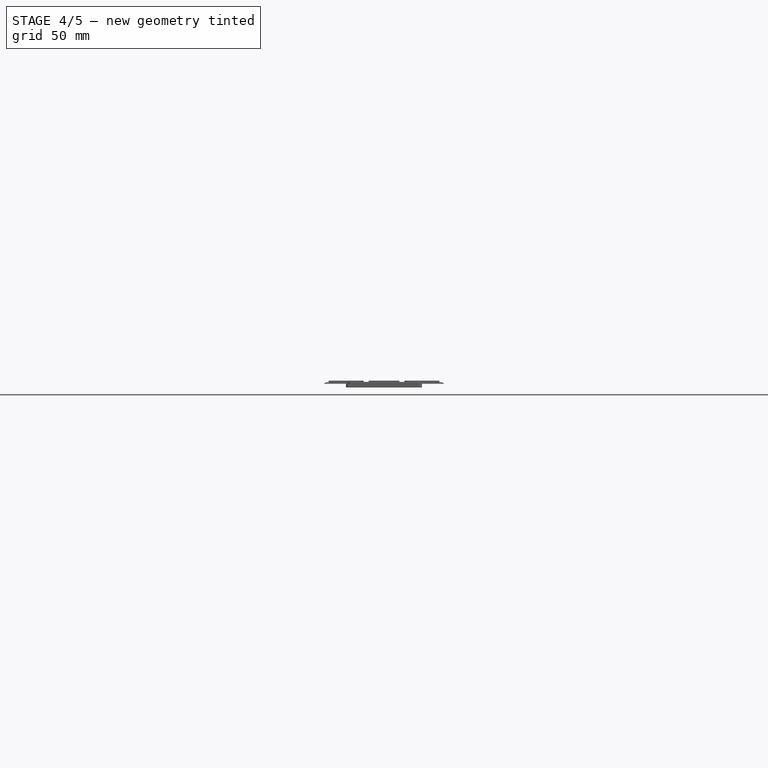
[diagram: stage 4 of 5 — front view after this stage's code; geometry added in this stage tinted green]
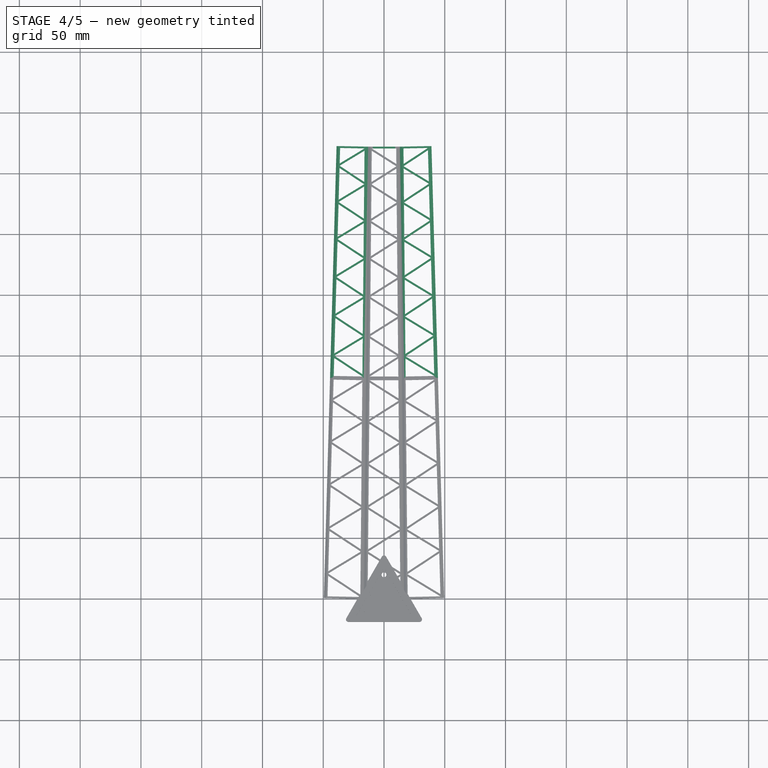
[diagram: stage 4 of 5 — top view after this stage's code; geometry added in this stage tinted green]
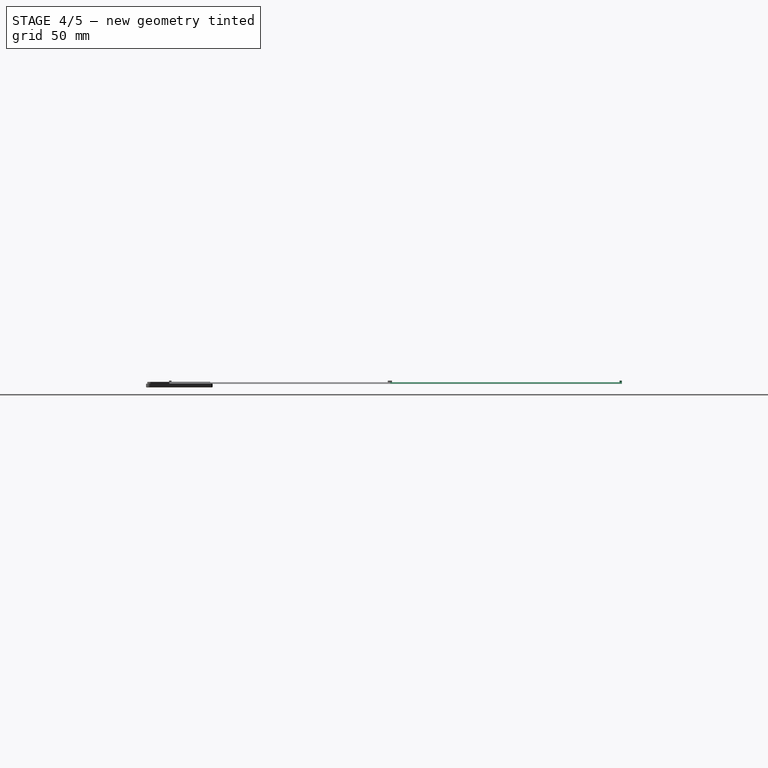
[diagram: stage 4 of 5 — right view after this stage's code; geometry added in this stage tinted green]
FEATURE [PartDesign::Chamfer] Chamfer001
  Angle = 62
  Base = -> Pad003 [Edge4,Edge10]
  BaseFeature = -> Pad003
  ChamferType = 2
  FlipDirection = false
  Refine = true
  Size = 1
  Size2 = 1
  SupportTransform = false
  Suppressed = false
  UseAllEdges = false
  expr: Angle = VarSet.IronLegAngle
FEATURE [Sketcher::SketchObject] Sketch015
  ArcFitTolerance = 1e-06
  AttachmentSupport = -> [Chamfer001]
  ExternalGeometry = -> [Chamfer001]
  ExternalTypes = [0]
  FullyConstrained = true
  MakeInternals = false
  MapMode = 5
  Placement = pos=(0,181.45,0) rot=(1,0,0;1.5708rad)
  sketch-geometry (4):
    g0: LineSegment StartX=-10.9225 StartY=2.5 StartZ=0 EndX=-10.9225 EndY=0 EndZ=0
    g1: LineSegment StartX=-10.9225 StartY=0 StartZ=0 EndX=10.9225 EndY=0 EndZ=0
    g2: LineSegment StartX=10.9225 StartY=0 StartZ=0 EndX=10.9225 EndY=2.5 EndZ=0
    g3: LineSegment StartX=10.9225 StartY=2.5 StartZ=0 EndX=-10.9225 EndY=2.5 EndZ=0
  constraints (11):
    c: Coincident(g0,g1)
    c: Coincident(g1,g2)
    c: Coincident(g2,g3)
    c: Coincident(g3,g0)
    c: Vertical(g0)
    c: Vertical(g2)
    c: Horizontal(g1)
    c: Horizontal(g3)
    c: Symmetric(g1,g0,g-1)
    c: DistanceX(g-3,g0) = 2
    c: Distance(g0,g0) = 2.5
FEATURE [PartDesign::Pad] Pad004
  BaseFeature = -> Chamfer001
  Direction = (0,-1,2e-16)
  Length = 1.5
  Length2 = 10
  Profile = -> Sketch015
  ReferenceAxis = -> Sketch015 [N_Axis]
  Refine = true
  Reversed = true
  SideType = 0
  Suppressed = false
  Type = 0
  Type2 = 0
FEATURE [Sketcher::SketchObject] Sketch016
  ArcFitTolerance = 1e-06
  AttachmentSupport = -> [Pad004]
  ExternalGeometry = -> [Pad004]
  ExternalTypes = [0]
  FullyConstrained = true
  MakeInternals = false
  MapMode = 5
  Placement = pos=(0,372.162,0) rot=(0,0.707107,0.707107;3.14159rad)
  sketch-geometry (4):
    g0: LineSegment StartX=-9.13899 StartY=2.5 StartZ=0 EndX=-9.13899 EndY=0 EndZ=0
    g1: LineSegment StartX=-9.13899 StartY=0 StartZ=0 EndX=9.13899 EndY=0 EndZ=0
    g2: LineSegment StartX=9.13899 StartY=0 StartZ=0 EndX=9.13899 EndY=2.5 EndZ=0
    g3: LineSegment StartX=9.13899 StartY=2.5 StartZ=0 EndX=-9.13899 EndY=2.5 EndZ=0
  constraints (11):
    c: Coincident(g0,g1)
    c: Coincident(g1,g2)
    c: Coincident(g2,g3)
    c: Coincident(g3,g0)
    c: Vertical(g0)
    c: Vertical(g2)
    c: Horizontal(g1)
    c: Horizontal(g3)
    c: Symmetric(g1,g0,g-1)
    c: Distance(g0,g0) = 2.5
    c: DistanceX(g-3,g0) = 2
FEATURE [PartDesign::Pad] Pad005
  BaseFeature = -> Pad004
  Direction = (0,1,-2e-16)
  Length = 1.5
  Length2 = 10
  Profile = -> Sketch016
  ReferenceAxis = -> Sketch016 [N_Axis]
  Refine = true
  Reversed = true
  SideType = 0
  Suppressed = false
  Type = 0
  Type2 = 0
FEATURE [PartDesign::Mirrored] Mirrored002
  BaseFeature = -> Pad005
  MirrorPlane = -> Pad005 [Face4]
  Originals = -> [Pad003,Chamfer001,Pad004,Pad005]
  Refine = true
  Suppressed = false
  TransformMode = 0
FEATURE [PartDesign::Mirrored] Mirrored003
  BaseFeature = -> Mirrored002
  MirrorPlane = -> Mirrored002 [Face3]
  Originals = -> [Pad003,Chamfer001,Pad004,Pad005]
  Refine = true
  Suppressed = false
  TransformMode = 0
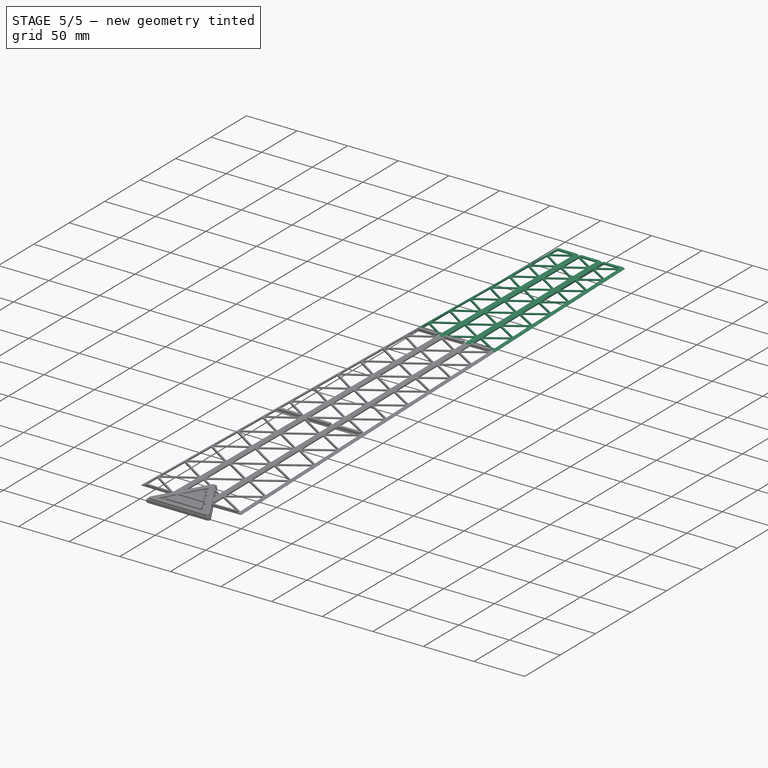
[diagram: stage 5 of 5 — iso view after this stage's code; geometry added in this stage tinted green]
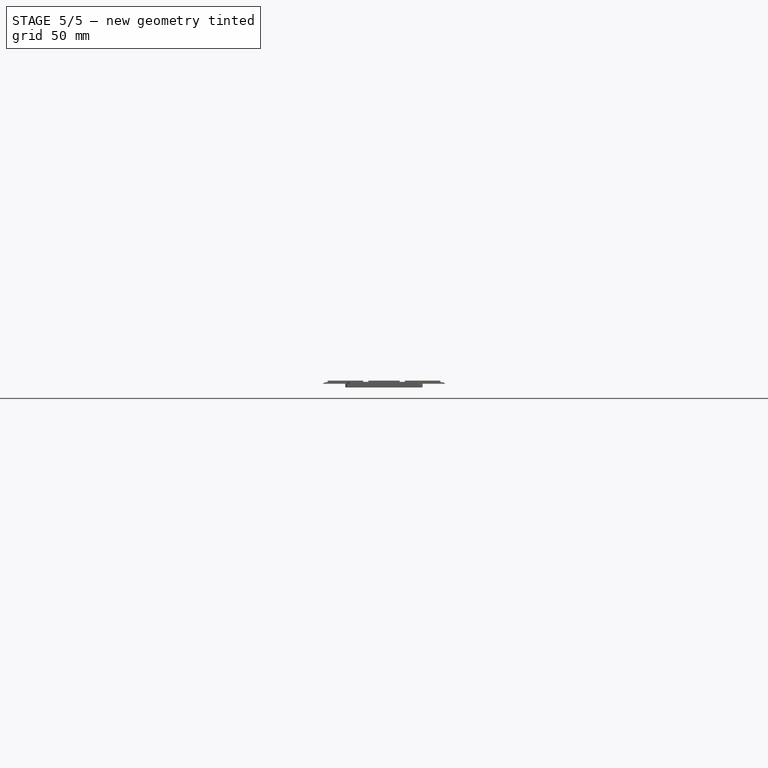
[diagram: stage 5 of 5 — front view after this stage's code; geometry added in this stage tinted green]
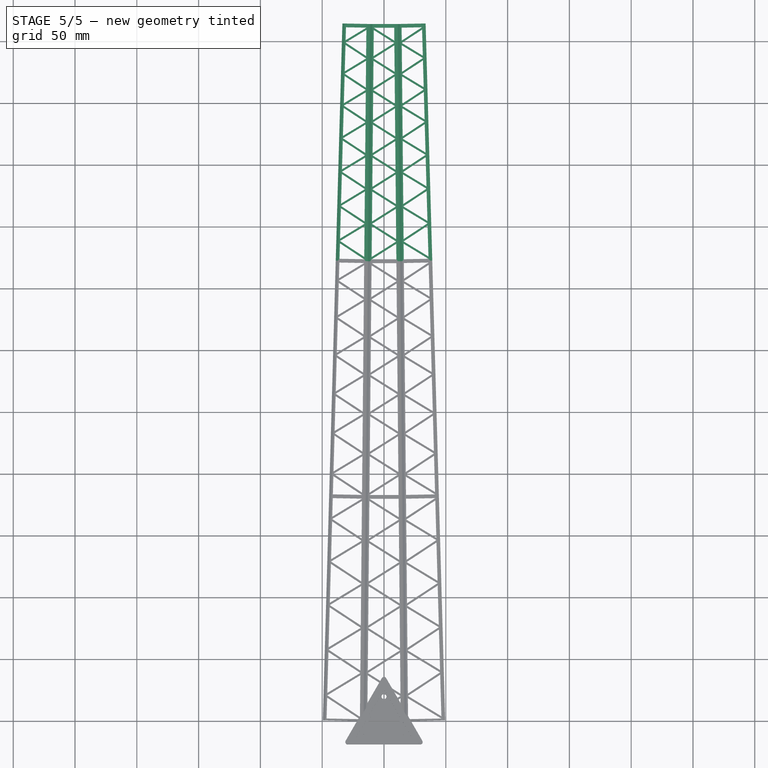
[diagram: stage 5 of 5 — top view after this stage's code; geometry added in this stage tinted green]
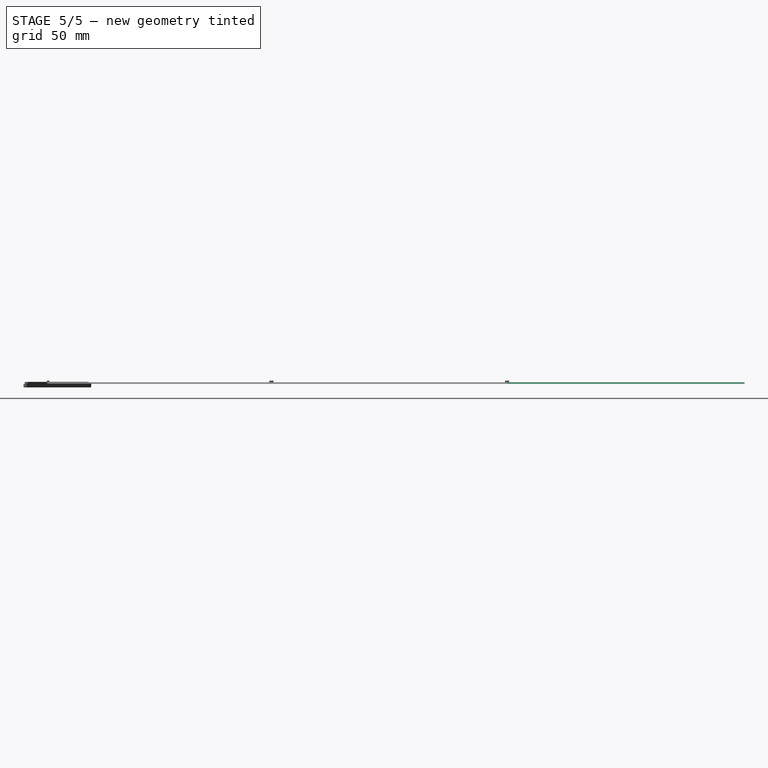
[diagram: stage 5 of 5 — right view after this stage's code; geometry added in this stage tinted green]
FEATURE [Image::ImagePlane] Taarn
  Placement = pos=(-63.4214,156.887,0) rot=(0,0,1;0.012217rad)
  XSize = 407.33
  YSize = 576.174
FEATURE [App::VarSet] VarSet
  IronLegAngle = 62
  IronLegWidth = 3
  IronSupportWidth = 1.5
  TowerBottomWidth = 30
  TowerHeight = 562.6
  TowerTopWidth = 19.4775
  expr: TowerBottomWidth = 40 * 3 / 4
  expr: TowerHeight = 353.87 + 308.73 - 100
  expr: TowerTopWidth = 25.97 * 3 / 4
FEATURE [Sketcher::SketchObject] Sketch  label="Basic Measurements"
  ArcFitTolerance = 1e-06
  AttachmentSupport = -> [XY_Plane]
  ExternalTypes = [0]
  FullyConstrained = false
  MakeInternals = false
  MapMode = 5
  sketch-geometry (7):
    g0: LineSegment StartX=-22.75 StartY=0 StartZ=0 EndX=22.75 EndY=0 EndZ=0
    g1: LineSegment StartX=0 StartY=0 StartZ=0 EndX=0 EndY=353.87 EndZ=0
    g2: LineSegment StartX=-157.614 StartY=302.942 StartZ=0 EndX=-131.644 EndY=302.942 EndZ=0
    g3: LineSegment StartX=-144.629 StartY=302.942 StartZ=0 EndX=-143.643 EndY=-5.78841 EndZ=0
    g4: LineSegment StartX=-96.211 StartY=303.16 StartZ=0 EndX=-48.4821 EndY=303.16 EndZ=0
    g5: LineSegment StartX=-48.4821 StartY=327.388 StartZ=0 EndX=-48.4821 EndY=303.16 EndZ=0
    g6: LineSegment StartX=-19.0815 StartY=210.004 StartZ=0 EndX=21.2867 EndY=210.004 EndZ=0
  constraints (16):
    c: PointOnObject(g0,g-1)
    c: Coincident(g1,g-1)
    c: Vertical(g1)
    c: Symmetric(g0,g0,g1)
    c: DistanceX(g0,g0) = 45.5
    c: Horizontal(g2)
    c: DistanceX(g2,g2) = 25.97
    c: Symmetric(g2,g2,g3)
    c: DistanceY(g3,g3) = 308.73
    c: DistanceY(g1,g1) = 353.87
    c: Horizontal(g4)
    c: DistanceX(g4,g4) = 47.7289
    c: Coincident(g5,g4)
    c: DistanceY(g5,g5) = 24.2284
    c: Horizontal(g6)
    c: DistanceX(g6,g6) = 40.3682
FEATURE [Sketcher::SketchObject] Sketch001  label="Basic Lattice Mast"
  ArcFitTolerance = 1e-06
  AttachmentSupport = -> [XY_Plane]
  ExternalTypes = [0]
  FullyConstrained = true
  MakeInternals = false
  MapMode = 5
  expr: Constraints[128] = VarSet.IronSupportWidth
  expr: Constraints[56] = VarSet.IronSupportWidth * 2
  expr: Constraints[7] = VarSet.TowerTopWidth
  expr: Constraints[8] = VarSet.TowerBottomWidth
  expr: Constraints[91] = VarSet.IronSupportWidth * 2
  expr: Constraints[9] = VarSet.TowerHeight
  sketch-geometry (50):
    g0: LineSegment StartX=-15 StartY=0 StartZ=0 EndX=-9.73875 EndY=562.6 EndZ=0
    g1: LineSegment StartX=-9.73875 StartY=562.6 StartZ=0 EndX=9.73875 EndY=562.6 EndZ=0
    g2: LineSegment StartX=9.73875 StartY=562.6 StartZ=0 EndX=15 EndY=0 EndZ=0
    g3: LineSegment StartX=15 StartY=0 StartZ=0 EndX=-15 EndY=0 EndZ=0
    g4: LineSegment StartX=-14.986 StartY=1.5 StartZ=0 EndX=14.8101 EndY=20.3079 EndZ=0
    g5: LineSegment StartX=14.8101 StartY=20.3079 StartZ=0 EndX=-14.6363 EndY=38.895 EndZ=0
    g6: LineSegment StartX=-14.6363 StartY=38.895 StartZ=0 EndX=14.4645 EndY=57.264 EndZ=0
    g7: LineSegment StartX=14.4645 StartY=57.264 StartZ=0 EndX=-14.2947 EndY=75.4174 EndZ=0
    g8: LineSegment [constr] StartX=14.8101 StartY=20.3079 StartZ=0 EndX=-14.8101 EndY=20.3079 EndZ=0
    g9: ArcOfCircle [constr] CenterX=14.8101 CenterY=20.3079 CenterZ=0 NormalX=0 NormalY=0 NormalZ=1 AngleXU=0 Radius=30 StartAngle=2.57853 EndAngle=3.70465
    g10: LineSegment [constr] StartX=-10.5587 StartY=36.3211 StartZ=0 EndX=-10.5587 EndY=4.29459 EndZ=0
    g11: LineSegment StartX=-14.2947 StartY=75.4174 StartZ=0 EndX=14.1269 EndY=93.3577 EndZ=0
    g12: LineSegment StartX=14.1269 StartY=93.3577 StartZ=0 EndX=-13.9611 EndY=111.087 EndZ=0
    g13: LineSegment StartX=-13.9611 StartY=111.087 StartZ=0 EndX=13.7973 EndY=128.609 EndZ=0
    g14: LineSegment StartX=13.7973 StartY=128.609 StartZ=0 EndX=-13.6354 EndY=145.925 EndZ=0
    g15: LineSegment StartX=-13.6354 StartY=145.925 StartZ=0 EndX=13.4753 EndY=163.038 EndZ=0
    g16: LineSegment StartX=13.4753 StartY=163.038 StartZ=0 EndX=-13.3172 EndY=179.95 EndZ=0
    g17: LineSegment StartX=-13.2891 StartY=182.95 StartZ=0 EndX=13.1331 EndY=199.628 EndZ=0
    g18: LineSegment StartX=13.1331 StartY=199.628 StartZ=0 EndX=-12.979 EndY=216.111 EndZ=0
    g19: LineSegment StartX=-12.979 StartY=216.111 StartZ=0 EndX=12.8267 EndY=232.4 EndZ=0
    g20: LineSegment StartX=12.8267 StartY=232.4 StartZ=0 EndX=-12.6761 EndY=248.498 EndZ=0
    g21: LineSegment StartX=-12.6761 StartY=248.498 StartZ=0 EndX=12.5274 EndY=264.407 EndZ=0
    g22: LineSegment StartX=12.5274 StartY=264.407 StartZ=0 EndX=-12.3803 EndY=280.129 EndZ=0
    g23: LineSegment StartX=-12.3803 StartY=280.129 StartZ=0 EndX=12.235 EndY=295.667 EndZ=0
    g24: LineSegment StartX=12.235 StartY=295.667 StartZ=0 EndX=-12.0914 EndY=311.022 EndZ=0
    g25: LineSegment StartX=-12.0914 StartY=311.022 StartZ=0 EndX=11.9495 EndY=326.197 EndZ=0
    g26: LineSegment StartX=11.9495 StartY=326.197 StartZ=0 EndX=-11.8093 EndY=341.194 EndZ=0
    g27: LineSegment StartX=-11.8093 StartY=341.194 StartZ=0 EndX=11.6707 EndY=356.015 EndZ=0
    g28: LineSegment StartX=11.6707 StartY=356.015 StartZ=0 EndX=-11.5337 EndY=370.662 EndZ=0
    g29: LineSegment StartX=-11.5056 StartY=373.662 StartZ=0 EndX=11.3706 EndY=388.102 EndZ=0
    g30: LineSegment StartX=11.3706 StartY=388.102 StartZ=0 EndX=-11.2371 EndY=402.372 EndZ=0
    g31: LineSegment StartX=-11.2371 StartY=402.372 StartZ=0 EndX=11.1053 EndY=416.475 EndZ=0
    g32: LineSegment StartX=11.1053 StartY=416.475 StartZ=0 EndX=-10.9749 EndY=430.413 EndZ=0
    g33: LineSegment StartX=-10.9749 StartY=430.413 StartZ=0 EndX=10.8461 EndY=444.187 EndZ=0
    g34: LineSegment StartX=10.8461 StartY=444.187 StartZ=0 EndX=-10.7188 EndY=457.799 EndZ=0
    g35: LineSegment StartX=-10.7188 StartY=457.799 StartZ=0 EndX=10.593 EndY=471.251 EndZ=0
    g36: LineSegment StartX=10.593 StartY=471.251 StartZ=0 EndX=-10.4687 EndY=484.546 EndZ=0
    g37: LineSegment StartX=-10.4687 StartY=484.546 StartZ=0 EndX=10.3458 EndY=497.684 EndZ=0
    g38: LineSegment StartX=10.3458 StartY=497.684 StartZ=0 EndX=-10.2244 EndY=510.669 EndZ=0
    g39: LineSegment StartX=-10.2244 StartY=510.669 StartZ=0 EndX=10.1044 EndY=523.501 EndZ=0
    g40: LineSegment StartX=10.1044 StartY=523.501 StartZ=0 EndX=-9.9858 EndY=536.182 EndZ=0
    g41: LineSegment StartX=-9.9858 StartY=536.182 StartZ=0 EndX=9.8686 EndY=548.715 EndZ=0
    g42: LineSegment StartX=9.8686 StartY=548.715 StartZ=0 EndX=-9.75278 EndY=561.1 EndZ=0
    g43: LineSegment StartX=-11.5197 StartY=372.162 StartZ=0 EndX=11.5197 EndY=372.162 EndZ=0
    g44: LineSegment StartX=-13.3031 StartY=181.45 StartZ=0 EndX=13.3031 EndY=181.45 EndZ=0
    g45: LineSegment StartX=-24 StartY=588.1 StartZ=0 EndX=-24 EndY=564.1 EndZ=0
    g46: LineSegment StartX=-24 StartY=564.1 StartZ=0 EndX=24 EndY=564.1 EndZ=0
    g47: LineSegment StartX=24 StartY=564.1 StartZ=0 EndX=24 EndY=588.1 EndZ=0
    g48: LineSegment StartX=24 StartY=588.1 StartZ=0 EndX=-24 EndY=588.1 EndZ=0
    g49: LineSegment StartX=-24 StartY=576.1 StartZ=0 EndX=24 EndY=576.1 EndZ=0
  constraints (149):
    c: Coincident(g0,g1)
    c: Coincident(g1,g2)
    c: Coincident(g2,g3)
    c: Coincident(g3,g0)
    c: Horizontal(g3)
    c: Symmetric(g0,g2,g-1)
    c: Symmetric(g1,g0,g-2)
    c: DistanceX(g1,g1) = 19.4775
    c: DistanceX(g3,g3) = 30
    c: DistanceY(g-1,g1) = 562.6
    c: Coincident(g4,g5)
    c: Coincident(g5,g6)
    c: Coincident(g6,g7)
    c: Coincident(g8,g4)
    c: PointOnObject(g8,g0)
    c: Horizontal(g8)
    c: Coincident(g9,g4)
    c: PointOnObject(g9,g5)
    c: PointOnObject(g9,g4)
    c: Coincident(g10,g9)
    c: Coincident(g10,g9)
    c: Vertical(g10)
    c: Parallel(g4,g6)
    c: Parallel(g7,g5)
    c: PointOnObject(g7,g0)
    c: PointOnObject(g5,g0)
    c: PointOnObject(g4,g0)
    c: PointOnObject(g6,g2)
    c: PointOnObject(g4,g2) = 1.5
    c: DistanceY(g0,g4) = 1.5
    c: Coincident(g11,g12)
    c: Coincident(g12,g13)
    c: Coincident(g13,g14)
    c: Parallel(g6,g11)
    c: Parallel(g11,g13)
    c: Parallel(g14,g12)
    c: Parallel(g12,g7)
    c: Coincident(g11,g7)
    c: PointOnObject(g12,g0)
    c: PointOnObject(g14,g0)
    c: PointOnObject(g13,g2)
    c: PointOnObject(g11,g2)
    c: Coincident(g14,g15)
    c: Coincident(g15,g16)
    c: Parallel(g14,g16)
    c: Parallel(g15,g13)
    c: PointOnObject(g16,g0)
    c: PointOnObject(g15,g2)
    c: Coincident(g17,g18)
    c: Coincident(g18,g19)
    c: Coincident(g19,g20)
    c: Parallel(g20,g18)
    c: Parallel(g18,g16)
    c: Parallel(g15,g17)
    c: Parallel(g17,g19)
    c: PointOnObject(g17,g0)
    c: DistanceY(g16,g17) = 3
    c: PointOnObject(g18,g0)
    c: PointOnObject(g17,g2)
    c: PointOnObject(g19,g2)
    c: PointOnObject(g20,g0)
    c: Coincident(g21,g22)
    c: Coincident(g22,g23)
    c: Parallel(g19,g21)
    c: Parallel(g21,g23)
    c: Parallel(g20,g22)
    c: Coincident(g21,g20)
    c: PointOnObject(g22,g0)
    c: PointOnObject(g21,g2)
    c: PointOnObject(g23,g2)
    c: Coincident(g24,g25)
    c: Coincident(g25,g26)
    c: Coincident(g26,g27)
    c: Coincident(g27,g28)
    c: Parallel(g27,g25)
    c: Parallel(g25,g23)
    c: Parallel(g28,g26)
    c: Parallel(g26,g22)
    c: Coincident(g24,g23)
    c: PointOnObject(g24,g0)
    c: PointOnObject(g25,g2)
    c: Parallel(g24,g22)
    c: PointOnObject(g26,g0)
    c: PointOnObject(g27,g2)
    c: PointOnObject(g28,g0)
    c: Coincident(g29,g30)
    c: Parallel(g27,g29)
    c: Parallel(g30,g28)
    c: PointOnObject(g29,g0)
    c: PointOnObject(g30,g0)
    c: PointOnObject(g29,g2)
    c: DistanceY(g28,g29) = 3
    c: Coincident(g31,g32)
    c: Coincident(g33,g34)
    c: Coincident(g35,g36)
    c: Parallel(g32,g34)
    c: Parallel(g34,g36)
    c: Parallel(g36,g30)
    c: Parallel(g29,g31)
    c: Parallel(g31,g33)
    c: Parallel(g33,g35)
    c: Coincident(g32,g33)
    c: Coincident(g31,g30)
    c: PointOnObject(g31,g2)
    c: PointOnObject(g32,g0)
    c: PointOnObject(g33,g2)
    c: PointOnObject(g34,g0)
    c: Coincident(g35,g34)
    c: PointOnObject(g35,g2)
    c: PointOnObject(g36,g0)
    c: Coincident(g37,g38)
    c: Coincident(g39,g40)
    c: Parallel(g35,g37)
    c: Parallel(g37,g39)
    c: Parallel(g40,g38)
    c: Parallel(g38,g36)
    c: Coincident(g37,g36)
    c: PointOnObject(g37,g2)
    c: PointOnObject(g38,g0)
    c: Coincident(g39,g38)
    c: PointOnObject(g40,g0)
    c: PointOnObject(g39,g2)
    c: Coincident(g40,g41)
    c: Coincident(g41,g42)
    c: Parallel(g40,g42)
    c: Parallel(g41,g39)
    c: PointOnObject(g41,g2)
    c: PointOnObject(g42,g0)
    c: DistanceY(g42,g0) = 1.5
    c: Radius(g9) = 30
    c: Horizontal(g43)
    c: PointOnObject(g43,g2)
    c: Symmetric(g28,g29,g43)
    c: Horizontal(g44)
    c: PointOnObject(g44,g2)
    c: Symmetric(g16,g17,g44)
    c: Coincident(g45,g46)
    c: Coincident(g46,g47)
    c: Coincident(g47,g48)
    c: Coincident(g48,g45)
    c: Vertical(g45)
    c: Vertical(g47)
    c: Horizontal(g48)
    c: Symmetric(g46,g45,g-2)
    c: DistanceX(g48,g48) = 48
    c: DistanceY(g45,g45) = 24
    c: Symmetric(g45,g45,g49)
    c: Symmetric(g49,g49,g-2)
    c: DistanceY(g0,g45) = 1.5
FEATURE [PartDesign::Body] Body
  AllowCompound = true
  Group = -> [Sketch,Sketch001]
  Origin = -> Origin
FEATURE [PartDesign::SubShapeBinder] Binder
  BindCopyOnChange = 0
  BindMode = 0
  ClaimChildren = false
  Context = -> Body001 [Binder.]
  Fuse = false
  MakeFace = true
  OffsetFill = false
  OffsetIntersection = false
  OffsetJoinType = 0
  OffsetOpenResult = false
  PartialLoad = false
  Refine = true
  Relative = true
  Support = -> [Body[Sketch001.]]
  _Version = 2
FEATURE [Sketcher::SketchObject] Sketch002
  ArcFitTolerance = 1e-06
  AttachmentSupport = -> [XY_Plane001]
  ExternalGeometry = -> [Binder]
  ExternalTypes = [0]
  FullyConstrained = true
  MakeInternals = false
  MapMode = 5
  expr: Constraints[11] = VarSet.IronLegWidth / 2
  expr: Constraints[33] = VarSet.IronLegWidth
  sketch-geometry (52):
    g0: LineSegment StartX=-13.0198 StartY=372.162 StartZ=0 EndX=-11.2249 EndY=564.1 EndZ=0
    g1: LineSegment StartX=-11.2249 StartY=564.1 StartZ=0 EndX=11.2249 EndY=564.1 EndZ=0
    g2: LineSegment StartX=11.2249 StartY=564.1 StartZ=0 EndX=13.0198 EndY=372.162 EndZ=0
    g3: LineSegment StartX=-13.0198 StartY=372.162 StartZ=0 EndX=13.0198 EndY=372.162 EndZ=0
    g4: LineSegment [constr] StartX=-9.73875 StartY=562.6 StartZ=0 EndX=-11.2387 EndY=562.614 EndZ=0
    g5: LineSegment [constr] StartX=-9.73875 StartY=562.6 StartZ=0 EndX=-9.73875 EndY=564.1 EndZ=0
    g6: LineSegment StartX=8.25265 StartY=561.1 StartZ=0 EndX=-8.25265 EndY=561.1 EndZ=0
    g7: LineSegment StartX=-8.25265 StartY=561.1 StartZ=0 EndX=8.35065 EndY=550.62 EndZ=0
    g8: LineSegment StartX=8.35065 StartY=550.62 StartZ=0 EndX=8.25265 EndY=561.1 EndZ=0
    g9: LineSegment StartX=-8.27025 StartY=559.217 StartZ=0 EndX=8.36847 EndY=548.715 EndZ=0
    g10: LineSegment StartX=8.36847 StartY=548.715 StartZ=0 EndX=-8.46785 EndY=538.087 EndZ=0
    g11: LineSegment StartX=-8.46785 StartY=538.087 StartZ=0 EndX=-8.27025 EndY=559.217 EndZ=0
    g12: LineSegment [constr] StartX=-8.27025 StartY=559.217 StartZ=0 EndX=-11.2703 EndY=559.245 EndZ=0
    g13: LineSegment StartX=8.38608 StartY=546.832 StartZ=0 EndX=-8.48567 EndY=536.182 EndZ=0
    g14: LineSegment StartX=-8.48567 StartY=536.182 StartZ=0 EndX=8.58645 EndY=525.406 EndZ=0
    g15: LineSegment StartX=8.58645 StartY=525.406 StartZ=0 EndX=8.38608 EndY=546.832 EndZ=0
    g16: LineSegment StartX=-8.50328 StartY=534.299 StartZ=0 EndX=8.60426 EndY=523.501 EndZ=0
    g17: LineSegment StartX=8.60426 StartY=523.501 StartZ=0 EndX=-8.70645 EndY=512.574 EndZ=0
    g18: LineSegment StartX=-8.70645 StartY=512.574 StartZ=0 EndX=-8.50328 EndY=534.299 EndZ=0
    g19: LineSegment StartX=8.62187 StartY=521.618 StartZ=0 EndX=-8.72426 EndY=510.669 EndZ=0
    g20: LineSegment StartX=-8.72426 StartY=510.669 StartZ=0 EndX=8.82787 EndY=499.59 EndZ=0
    g21: LineSegment StartX=8.82787 StartY=499.59 StartZ=0 EndX=8.62187 EndY=521.618 EndZ=0
    g22: LineSegment StartX=-8.74187 StartY=508.786 StartZ=0 EndX=8.84569 EndY=497.684 EndZ=0
    g23: LineSegment StartX=8.84569 StartY=497.684 StartZ=0 EndX=-8.95074 EndY=486.451 EndZ=0
    g24: LineSegment StartX=-8.95074 StartY=486.451 StartZ=0 EndX=-8.74187 EndY=508.786 EndZ=0
    g25: LineSegment StartX=8.86329 StartY=495.802 StartZ=0 EndX=-8.96855 EndY=484.546 EndZ=0
    g26: LineSegment StartX=-8.96855 StartY=484.546 StartZ=0 EndX=9.07507 EndY=473.156 EndZ=0
    g27: LineSegment StartX=9.07507 StartY=473.156 StartZ=0 EndX=8.86329 EndY=495.802 EndZ=0
    g28: LineSegment StartX=-8.98616 StartY=482.663 StartZ=0 EndX=9.09288 EndY=471.251 EndZ=0
    g29: LineSegment StartX=9.09288 StartY=471.251 StartZ=0 EndX=-9.20087 EndY=459.704 EndZ=0
    g30: LineSegment StartX=-9.20087 StartY=459.704 StartZ=0 EndX=-8.98616 EndY=482.663 EndZ=0
    g31: LineSegment StartX=-9.21868 StartY=457.799 StartZ=0 EndX=9.11049 EndY=469.369 EndZ=0
    g32: LineSegment StartX=9.11049 StartY=469.369 StartZ=0 EndX=9.32817 EndY=446.092 EndZ=0
    g33: LineSegment StartX=9.32817 StartY=446.092 StartZ=0 EndX=-9.21868 EndY=457.799 EndZ=0
    g34: LineSegment StartX=-9.23629 StartY=455.916 StartZ=0 EndX=-9.45697 EndY=432.318 EndZ=0
    g35: LineSegment StartX=-9.45697 StartY=432.318 StartZ=0 EndX=9.34598 EndY=444.187 EndZ=0
    g36: LineSegment StartX=9.34598 StartY=444.187 StartZ=0 EndX=-9.23629 EndY=455.916 EndZ=0
    g37: LineSegment StartX=9.36359 StartY=442.304 StartZ=0 EndX=-9.47479 EndY=430.413 EndZ=0
    g38: LineSegment StartX=-9.47479 StartY=430.413 StartZ=0 EndX=9.58731 EndY=418.38 EndZ=0
    g39: LineSegment StartX=9.58731 StartY=418.38 StartZ=0 EndX=9.36359 EndY=442.304 EndZ=0
    g40: LineSegment StartX=-9.4924 StartY=428.53 StartZ=0 EndX=9.60513 EndY=416.475 EndZ=0
    g41: LineSegment StartX=9.60513 StartY=416.475 StartZ=0 EndX=-9.7192 EndY=404.278 EndZ=0
    g42: LineSegment StartX=-9.7192 StartY=404.278 StartZ=0 EndX=-9.4924 EndY=428.53 EndZ=0
    g43: LineSegment StartX=9.62273 StartY=414.593 StartZ=0 EndX=-9.73701 EndY=402.372 EndZ=0
    g44: LineSegment StartX=-9.73701 StartY=402.372 StartZ=0 EndX=9.85265 EndY=390.007 EndZ=0
    g45: LineSegment StartX=9.85265 StartY=390.007 StartZ=0 EndX=9.62273 EndY=414.593 EndZ=0
    g46: LineSegment StartX=-9.75462 StartY=400.49 StartZ=0 EndX=9.87047 EndY=388.102 EndZ=0
    g47: LineSegment StartX=9.87047 StartY=388.102 StartZ=0 EndX=-9.98769 EndY=375.567 EndZ=0
    g48: LineSegment StartX=-9.98769 StartY=375.567 StartZ=0 EndX=-9.75462 EndY=400.49 EndZ=0
    g49: LineSegment StartX=-10.0055 StartY=373.662 StartZ=0 EndX=9.88807 EndY=386.219 EndZ=0
    g50: LineSegment StartX=9.88807 StartY=386.219 StartZ=0 EndX=10.0055 EndY=373.662 EndZ=0
    g51: LineSegment StartX=10.0055 StartY=373.662 StartZ=0 EndX=-10.0055 EndY=373.662 EndZ=0
  constraints (155):
    c: Coincident(g0,g1)
    c: Coincident(g1,g2)
    c: Coincident(g3,g0)
    c: Coincident(g3,g2)
    c: Horizontal(g3)
    c: Parallel(g0,g-8)
    c: Parallel(g2,g-7)
    c: Symmetric(g1,g0,g-2)
    c: Coincident(g4,g-8)
    c: PointOnObject(g4,g0)
    c: Perpendicular(g0,g4)
    c: DistanceX(g4,g4) = 1.5
    c: Coincident(g5,g4)
    c: PointOnObject(g5,g1)
    c: Perpendicular(g5,g1)
    c: Equal(g5,g4)
    c: Coincident(g6,g7)
    c: Coincident(g7,g8)
    c: Coincident(g8,g6)
    c: Coincident(g9,g10)
    c: Coincident(g10,g11)
    c: Coincident(g11,g9)
    c: Parallel(g9,g7)
    c: Parallel(g7,g-3)
    c: Parallel(g11,g-8)
    c: Parallel(g10,g-4)
    c: Horizontal(g9,g-4)
    c: Parallel(g8,g-7)
    c: Horizontal(g6,g-3)
    c: PointOnObject(g6,g11)
    c: Coincident(g12,g9)
    c: PointOnObject(g12,g0)
    c: Perpendicular(g0,g12)
    c: DistanceX(g12,g12) = 3
    c: Symmetric(g6,g6,g-2)
    c: PointOnObject(g9,g8)
    c: Coincident(g13,g14)
    c: Coincident(g14,g15)
    c: Coincident(g15,g13)
    c: Coincident(g16,g17)
    c: Coincident(g17,g18)
    c: Coincident(g18,g16)
    c: Parallel(g18,g-8)
    c: Parallel(g15,g-7)
    c: Horizontal(g13,g-6)
    c: Horizontal(g16,g-9)
    c: PointOnObject(g16,g15)
    c: PointOnObject(g13,g18)
    c: PointOnObject(g13,g11)
    c: PointOnObject(g13,g8)
    c: Parallel(g13,g-4)
    c: Parallel(g14,g-6)
    c: Parallel(g16,g-6)
    c: Parallel(g17,g-9)
    c: Coincident(g19,g20)
    c: Coincident(g20,g21)
    c: Coincident(g21,g19)
    c: Coincident(g22,g23)
    c: Coincident(g23,g24)
    c: Coincident(g24,g22)
    c: Coincident(g25,g26)
    c: Coincident(g26,g27)
    c: Coincident(g27,g25)
    c: Horizontal(g19,g-10)
    c: Horizontal(g22,g-11)
    c: Horizontal(g25,g-12)
    c: Parallel(g19,g-9)
    c: Parallel(g21,g-7)
    c: Parallel(g20,g-10)
    c: Parallel(g-10,g22)
    c: Parallel(g24,g-8)
    c: Parallel(g23,g-11)
    c: Parallel(g25,g-11)
    c: Parallel(g27,g-7)
    c: Parallel(g26,g-12)
    c: PointOnObject(g19,g18)
    c: PointOnObject(g22,g18)
    c: PointOnObject(g25,g24)
    c: PointOnObject(g19,g15)
    c: PointOnObject(g22,g21)
    c: PointOnObject(g25,g21)
    c: Coincident(g28,g29)
    c: Coincident(g29,g30)
    c: Coincident(g30,g28)
    c: Coincident(g31,g32)
    c: Coincident(g32,g33)
    c: Coincident(g33,g31)
    c: Coincident(g34,g35)
    c: Coincident(g35,g36)
    c: Coincident(g36,g34)
    c: Coincident(g37,g38)
    c: Coincident(g38,g39)
    c: Coincident(g39,g37)
    c: Horizontal(g28,g-13)
    c: Horizontal(g31,g-14)
    c: Horizontal(g35,g-15)
    c: Horizontal(g37,g-16)
    c: Parallel(g30,g34)
    c: Parallel(g34,g-8)
    c: Parallel(g32,g39)
    c: Parallel(g39,g-7)
    c: Parallel(g31,g-13)
    c: Parallel(g-13,g29)
    c: Parallel(g28,g-12)
    c: Parallel(g33,g-14)
    c: Parallel(g-14,g36)
    c: Parallel(g37,g35)
    c: Parallel(g35,g-15)
    c: Parallel(g38,g-16)
    c: PointOnObject(g28,g27)
    c: PointOnObject(g31,g27)
    c: PointOnObject(g35,g32)
    c: PointOnObject(g37,g32)
    c: PointOnObject(g28,g24)
    c: PointOnObject(g31,g30)
    c: PointOnObject(g34,g30)
    c: PointOnObject(g37,g34)
    c: Coincident(g40,g41)
    c: Coincident(g41,g42)
    c: Coincident(g42,g40)
    c: Coincident(g43,g44)
    c: Coincident(g44,g45)
    c: Coincident(g45,g43)
    c: Coincident(g46,g47)
    c: Coincident(g47,g48)
    c: Coincident(g48,g46)
    c: Coincident(g49,g50)
    c: Coincident(g50,g51)
    c: Coincident(g51,g49)
    c: Horizontal(g51)
    c: Parallel(g40,g-16)
    c: Parallel(g41,g-17)
    c: Parallel(g42,g-8)
    c: Parallel(g43,g-17)
    c: Parallel(g44,g-18)
    c: Parallel(g45,g-7)
    c: Parallel(g46,g-18)
    c: Parallel(g47,g-19)
    c: Parallel(g48,g-8)
    c: Parallel(g49,g-19)
    c: Parallel(g50,g-7)
    c: Horizontal(g40,g-17)
    c: Horizontal(g43,g-18)
    c: Horizontal(g46,g-19)
    c: Horizontal(g49,g-19)
    c: PointOnObject(g40,g34)
    c: PointOnObject(g40,g39)
    c: PointOnObject(g43,g39)
    c: PointOnObject(g43,g42)
    c: PointOnObject(g46,g42)
    c: PointOnObject(g46,g45)
    c: PointOnObject(g49,g48)
    c: PointOnObject(g49,g45)
    c: Horizontal(g0,g-20)
    c: DistanceX(g0,g1) = 22.4497
FEATURE [PartDesign::Pad] Pad
  Direction = (0,0,1)
  Length = 1.2
  Length2 = 10
  Profile = -> Sketch002
  ReferenceAxis = -> Sketch002 [N_Axis]
  Refine = true
  SideType = 0
  Suppressed = false
  Type = 0
  Type2 = 0
FEATURE [PartDesign::Chamfer] Chamfer
  Angle = 62
  Base = -> Pad [Edge4,Edge10]
  BaseFeature = -> Pad
  ChamferType = 2
  FlipDirection = false
  Refine = true
  Size = 1
  Size2 = 1
  SupportTransform = false
  Suppressed = false
  UseAllEdges = false
  expr: Angle = VarSet.IronLegAngle
FEATURE [Sketcher::SketchObject] Sketch013
  ArcFitTolerance = 1e-06
  AttachmentSupport = -> [Chamfer]
  ExternalGeometry = -> [Chamfer]
  ExternalTypes = [0]
  FullyConstrained = true
  MakeInternals = false
  MapMode = 5
  Placement = pos=(0,372.162,0) rot=(1,0,0;1.5708rad)
  sketch-geometry (4):
    g0: LineSegment StartX=-9.13899 StartY=2.5 StartZ=0 EndX=-9.13899 EndY=0 EndZ=0
    g1: LineSegment StartX=-9.13899 StartY=0 StartZ=0 EndX=9.13899 EndY=0 EndZ=0
    g2: LineSegment StartX=9.13899 StartY=0 StartZ=0 EndX=9.13899 EndY=2.5 EndZ=0
    g3: LineSegment StartX=9.13899 StartY=2.5 StartZ=0 EndX=-9.13899 EndY=2.5 EndZ=0
  constraints (11):
    c: Coincident(g0,g1)
    c: Coincident(g1,g2)
    c: Coincident(g2,g3)
    c: Coincident(g3,g0)
    c: Vertical(g0)
    c: Vertical(g2)
    c: Horizontal(g1)
    c: Horizontal(g3)
    c: Symmetric(g1,g1,g-1)
    c: Distance(g0,g0) = 2.5
    c: DistanceX(g-3,g0) = 2
FEATURE [PartDesign::Pad] Pad002
  BaseFeature = -> Chamfer
  Direction = (0,-1,2e-16)
  Length = 1.5
  Length2 = 10
  Profile = -> Sketch013
  ReferenceAxis = -> Sketch013 [N_Axis]
  Refine = true
  Reversed = true
  SideType = 0
  Suppressed = false
  Type = 0
  Type2 = 0
FEATURE [PartDesign::Mirrored] Mirrored
  BaseFeature = -> Pad002
  MirrorPlane = -> Pad002 [Face5]
  Originals = -> [Pad002]
  Refine = true
  Suppressed = false
  TransformMode = 1
FEATURE [PartDesign::Mirrored] Mirrored001
  BaseFeature = -> Mirrored
  MirrorPlane = -> Mirrored [Face1]
  Originals = -> [Pad,Chamfer,Pad002]
  Refine = true
  Suppressed = false
  TransformMode = 0
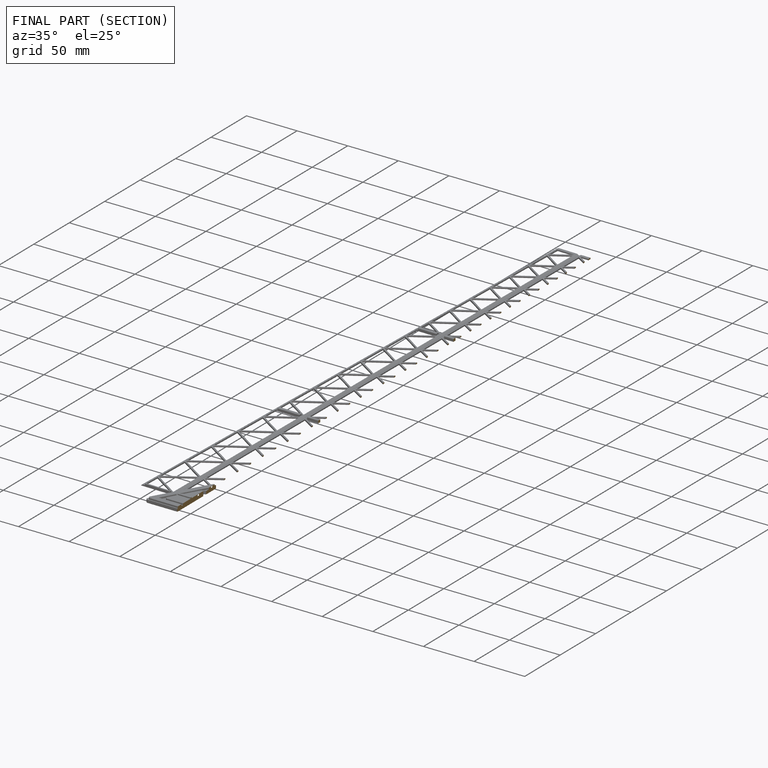
[diagram: finished part — half-section view (interior)]
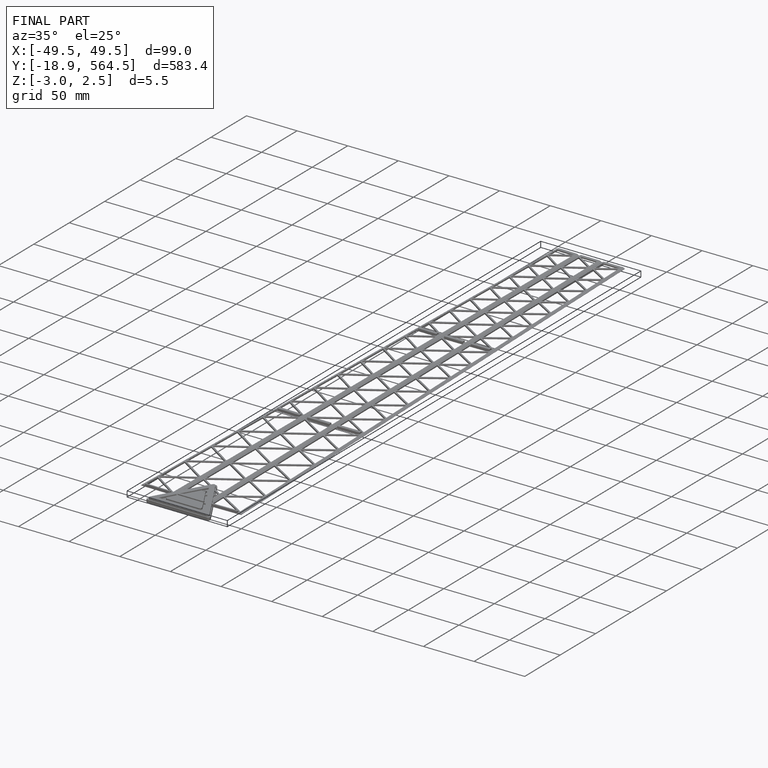
[diagram: finished part — iso view with bounding-box wireframe]
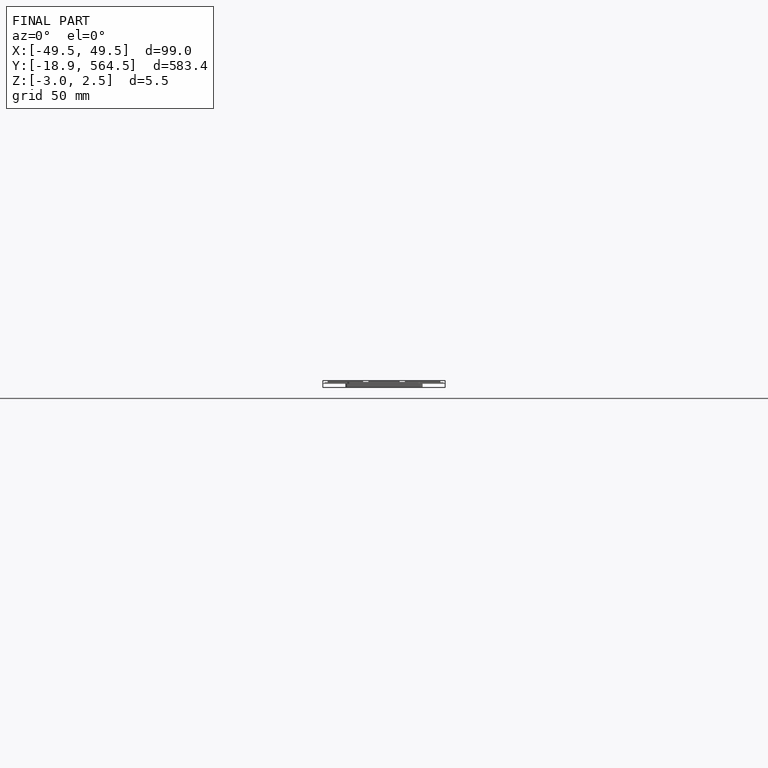
[diagram: finished part — front view with bounding-box wireframe]
